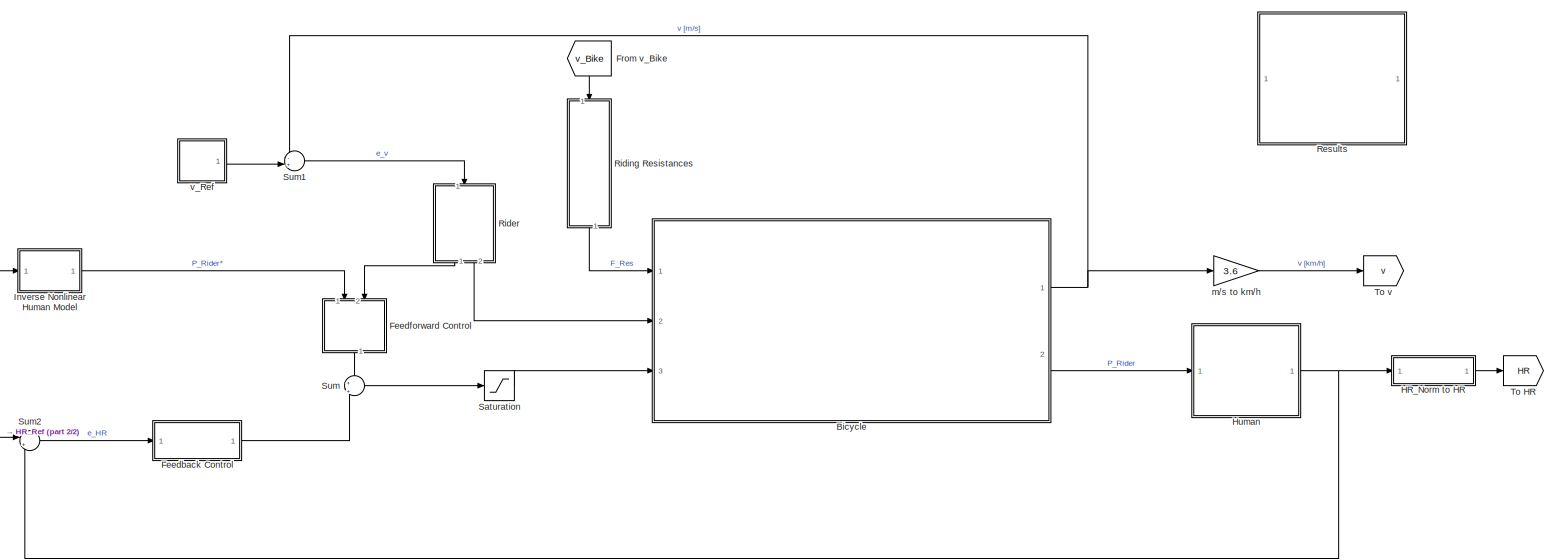
[diagram: root canvas - part 1/2, most of the canvas]
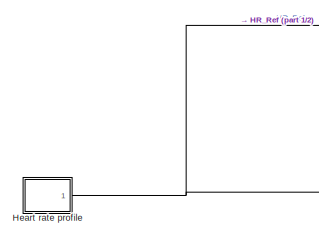
[diagram: root canvas - part 2/2, middle left region]
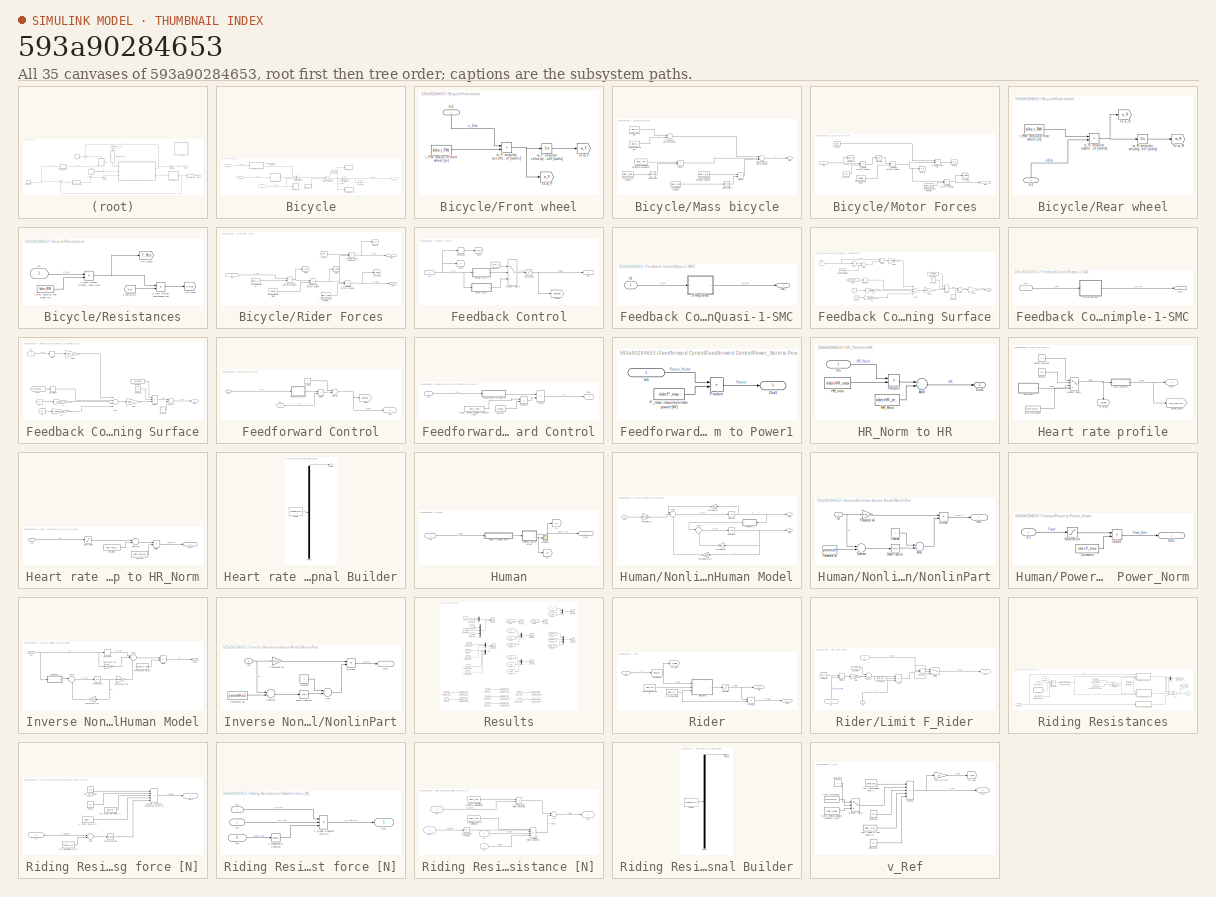
[diagram: thumbnail index - all 35 canvases of the model, root first then tree order]
MODEL slx_593a90284653
KIND model
BLOCK [SubSystem] Bicycle
  Ports = [3, 2]
  RequestExecContextInheritance = off
BLOCK [SubSystem] Bicycle/Front wheel
  Ports = [1]
  RequestExecContextInheritance = off
BLOCK [Inport] Bicycle/Front wheel/In1
  IconDisplay = Signal name
BLOCK [Goto] Bicycle/Front wheel/To a_F
  GotoTag = a_F
  TagVisibility = global
BLOCK [Goto] Bicycle/Front wheel/To w_F
  GotoTag = w_F
  TagVisibility = global
BLOCK [Product] Bicycle/Front wheel/a_F: angular acceleration of front wheel [rad//s²] 
  InputSameDT = off
  Inputs = */
  OutDataTypeStr = Inherit: Inherit via internal rule
  Ports = [2, 1]
  RndMeth = Floor
  SaturateOnIntegerOverflow = off
BLOCK [Constant] Bicycle/Front wheel/r_FW: radius of front wheel [m]
  Value = bike.r_FW
BLOCK [Integrator] Bicycle/Front wheel/w_F: angular velocity of front wheel [rad//s]
  Ports = [1, 1]
BLOCK [Inport] Bicycle/In1
  IconDisplay = Signal name
  Port = 2
BLOCK [Inport] Bicycle/In2
  IconDisplay = Signal name
  Port = 3
BLOCK [Inport] Bicycle/In3
  IconDisplay = Signal name
BLOCK [SubSystem] Bicycle/Mass bicycle
  Ports = [0, 1]
  RequestExecContextInheritance = off
BLOCK [Product] Bicycle/Mass bicycle/Divide1
  InputSameDT = off
  Inputs = */
  OutDataTypeStr = Inherit: Inherit via internal rule
  Ports = [2, 1]
  RndMeth = Floor
  SaturateOnIntegerOverflow = off
BLOCK [Product] Bicycle/Mass bicycle/Divide2
  InputSameDT = off
  Inputs = */
  OutDataTypeStr = Inherit: Inherit via internal rule
  Ports = [2, 1]
  RndMeth = Floor
  SaturateOnIntegerOverflow = off
BLOCK [Constant] Bicycle/Mass bicycle/I_F: Mass moment of inertia of front wheel [kgm²]
  Value = bike.I_FW
BLOCK [Constant] Bicycle/Mass bicycle/I_RW: Mass moment of inertia of rear wheel [kgm²]
  Value = bike.I_RW
BLOCK [Sum] Bicycle/Mass bicycle/M: Mass of bicycle rider system [kg]
  InputSameDT = off
  Inputs = +++
  OutDataTypeStr = Inherit: Inherit via internal rule
  Ports = [3, 1]
  SaturateOnIntegerOverflow = off
BLOCK [Math] Bicycle/Mass bicycle/Math Function
  Operator = square
  Ports = [1, 1]
BLOCK [Math] Bicycle/Mass bicycle/Math Function1
  Operator = square
  Ports = [1, 1]
BLOCK [Outport] Bicycle/Mass bicycle/Out1
  IconDisplay = Signal name
BLOCK [Constant] Bicycle/Mass bicycle/m_B: mass of bicycle [kg]
  Value = bike.m
BLOCK [Constant] Bicycle/Mass bicycle/m_R: mass of rider [kg]
  Value = rider.m
BLOCK [Sum] Bicycle/Mass bicycle/m_T: Mass of bicycle + rider [kg]
  InputSameDT = off
  OutDataTypeStr = Inherit: Inherit via internal rule
  Ports = [2, 1]
  SaturateOnIntegerOverflow = off
BLOCK [Constant] Bicycle/Mass bicycle/r_F: front wheel radius [m]
  Value = bike.r_FW
BLOCK [Constant] Bicycle/Mass bicycle/r_RW: rear wheel radius [m]
  Value = bike.r_RW
BLOCK [SubSystem] Bicycle/Motor Forces
  Ports = [1, 1]
  RequestExecContextInheritance = off
BLOCK [Product] Bicycle/Motor Forces/F_MRW: Motor Force at rear wheel [N]
  InputSameDT = off
  Inputs = */
  OutDataTypeStr = Inherit: Inherit via internal rule
  Ports = [2, 1]
  RndMeth = Floor
  SaturateOnIntegerOverflow = off
BLOCK [From] Bicycle/Motor Forces/From T_RC
  GotoTag = T_RC
  TagVisibility = global
BLOCK [From] Bicycle/Motor Forces/From w_F
  GotoTag = w_R
  TagVisibility = global
BLOCK [Inport] Bicycle/Motor Forces/In2
  IconDisplay = Signal name
BLOCK [Outport] Bicycle/Motor Forces/Out1
  IconDisplay = Signal name
BLOCK [Product] Bicycle/Motor Forces/P_M: Motor Power [W]
  InputSameDT = off
  Inputs = **
  OutDataTypeStr = Inherit: Inherit via internal rule
  Ports = [2, 1]
  RndMeth = Floor
  SaturateOnIntegerOverflow = off
BLOCK [Saturate] Bicycle/Motor Forces/Saturation
  InputPortMap = u0
  LowerLimit = bike.motor.T_min
  Ports = [1, 1]
  UpperLimit = bike.motor.T_max
  ZeroCross = off
BLOCK [Product] Bicycle/Motor Forces/T_MP: Motor Torque at pedals [Nm]
  InputSameDT = off
  Inputs = **
  OutDataTypeStr = Inherit: Inherit via internal rule
  Ports = [2, 1]
  RndMeth = Floor
  SaturateOnIntegerOverflow = off
BLOCK [Product] Bicycle/Motor Forces/T_MRW: Motor torque at rear wheel [Nm]
  InputSameDT = off
  Inputs = */
  OutDataTypeStr = Inherit: Inherit via internal rule
  Ports = [2, 1]
  RndMeth = Floor
  SaturateOnIntegerOverflow = off
BLOCK [Goto] Bicycle/Motor Forces/To F_MRW
  GotoTag = F_MRW
  TagVisibility = global
BLOCK [Goto] Bicycle/Motor Forces/To P_M
  GotoTag = P_M
  TagVisibility = global
BLOCK [Goto] Bicycle/Motor Forces/To T_M
  GotoTag = T_M
  TagVisibility = global
BLOCK [Goto] Bicycle/Motor Forces/To beta_ref
  GotoTag = beta_ref
  TagVisibility = global
BLOCK [Constant] Bicycle/Motor Forces/r_RW: radius of rear wheel [m]
  Value = bike.r_RW
BLOCK [Constant] Bicycle/Motor Forces/tau: transmission ratio [-]
  Value = bike.tau
BLOCK [Outport] Bicycle/Out1
  IconDisplay = Signal name
BLOCK [Outport] Bicycle/Out2
  IconDisplay = Signal name
  Port = 2
BLOCK [SubSystem] Bicycle/Rear wheel
  Ports = [1]
  RequestExecContextInheritance = off
BLOCK [Inport] Bicycle/Rear wheel/In1
  IconDisplay = Signal name
BLOCK [Goto] Bicycle/Rear wheel/To a_R
  GotoTag = a_R
  TagVisibility = global
BLOCK [Goto] Bicycle/Rear wheel/To w_R
  GotoTag = w_R
  TagVisibility = global
BLOCK [Product] Bicycle/Rear wheel/a_R: angular acceleration of rear wheel [rad//s²] 
  InputSameDT = off
  Inputs = /*
  OutDataTypeStr = Inherit: Inherit via internal rule
  Ports = [2, 1]
  RndMeth = Floor
  SaturateOnIntegerOverflow = off
BLOCK [Constant] Bicycle/Rear wheel/r_RW: radius of rear wheel [m]
  Value = bike.r_RW
BLOCK [Integrator] Bicycle/Rear wheel/w_R: angular velocity of rear wheel [rad//s]
  Ports = [1, 1]
BLOCK [SubSystem] Bicycle/Resistances
  Ports = [1]
  RequestExecContextInheritance = off
BLOCK [From] Bicycle/Resistances/From w_R2
  GotoTag = w_R
  TagVisibility = global
BLOCK [Inport] Bicycle/Resistances/In1
  IconDisplay = Signal name
BLOCK [Product] Bicycle/Resistances/P_Res: Riding resistances [W]
  InputSameDT = off
  OutDataTypeStr = Inherit: Inherit via internal rule
  Ports = [2, 1]
  RndMeth = Floor
  SaturateOnIntegerOverflow = off
BLOCK [Product] Bicycle/Resistances/T_Res: Torque Riding resistances [Nm]
  InputSameDT = off
  OutDataTypeStr = Inherit: Inherit via internal rule
  Ports = [2, 1]
  RndMeth = Floor
  SaturateOnIntegerOverflow = off
BLOCK [Goto] Bicycle/Resistances/To P_Res
  GotoTag = P_Res
  TagVisibility = global
BLOCK [Goto] Bicycle/Resistances/To T_Res1
  GotoTag = T_Res
  TagVisibility = global
BLOCK [Constant] Bicycle/Resistances/r_RW: radius of rear wheel [m]
  Value = bike.r_RW
BLOCK [SubSystem] Bicycle/Rider Forces
  Ports = [1, 2]
  RequestExecContextInheritance = off
BLOCK [Product] Bicycle/Rider Forces/F_RRW: Rider Force at rear wheel [N]
  InputSameDT = off
  Inputs = */
  OutDataTypeStr = Inherit: Inherit via internal rule
  Ports = [2, 1]
  RndMeth = Floor
  SaturateOnIntegerOverflow = off
BLOCK [From] Bicycle/Rider Forces/From w_R
  GotoTag = w_R
  TagVisibility = global
BLOCK [Goto] Bicycle/Rider Forces/Goto1
  GotoTag = T_RRW
  TagVisibility = global
BLOCK [Goto] Bicycle/Rider Forces/Goto2
  GotoTag = T_RC
  TagVisibility = global
BLOCK [Inport] Bicycle/Rider Forces/In1
  IconDisplay = Signal name
BLOCK [Outport] Bicycle/Rider Forces/Out1
  IconDisplay = Signal name
  Port = 2
BLOCK [Outport] Bicycle/Rider Forces/Out2
  IconDisplay = Signal name
BLOCK [Product] Bicycle/Rider Forces/P_R: Power output of rider [W]
  InputSameDT = off
  OutDataTypeStr = Inherit: Inherit via internal rule
  Ports = [2, 1]
  RndMeth = Floor
  SaturateOnIntegerOverflow = off
BLOCK [Product] Bicycle/Rider Forces/T_RC: Torque Rider at cranks[Nm]
  InputSameDT = off
  OutDataTypeStr = Inherit: Inherit via internal rule
  Ports = [2, 1]
  RndMeth = Floor
  SaturateOnIntegerOverflow = off
BLOCK [Product] Bicycle/Rider Forces/T_RRW: Torque rider at rear wheel [Nm]
  InputSameDT = off
  Inputs = */
  OutDataTypeStr = Inherit: Inherit via internal rule
  Ports = [2, 1]
  RndMeth = Floor
  SaturateOnIntegerOverflow = off
BLOCK [Goto] Bicycle/Rider Forces/To F_RRW
  GotoTag = F_RRW
  TagVisibility = global
BLOCK [Goto] Bicycle/Rider Forces/To P_R
  GotoTag = P_R
  TagVisibility = global
BLOCK [Constant] Bicycle/Rider Forces/r_C: Crank length [m]
  Value = bike.r_C
BLOCK [Constant] Bicycle/Rider Forces/r_RW: radius of rear wheel [m]
  Value = bike.r_RW
BLOCK [Constant] Bicycle/Rider Forces/tau: transmission ratio [-]
  Value = bike.tau
BLOCK [Goto] Bicycle/To a_Bike
  GotoTag = a_Bike
  TagVisibility = global
BLOCK [Goto] Bicycle/To v_Bike
  GotoTag = v_Bike
  TagVisibility = global
BLOCK [Sum] Bicycle/Total Forces on bicycle [N]
  InputSameDT = off
  Inputs = ++-
  OutDataTypeStr = Inherit: Inherit via internal rule
  Ports = [3, 1]
  SaturateOnIntegerOverflow = off
BLOCK [Product] Bicycle/a_Bike: acceleration of bicycle [m//s²]
  InputSameDT = off
  Inputs = */
  OutDataTypeStr = Inherit: Inherit via internal rule
  Ports = [2, 1]
  RndMeth = Floor
  SaturateOnIntegerOverflow = off
BLOCK [Integrator] Bicycle/v_Bike: Velocity of bicycle [m//s]
  Ports = [1, 1]
BLOCK [SubSystem] Feedback Control
  Ports = [1, 1]
  RequestExecContextInheritance = off
BLOCK [Constant] Feedback Control/Constant
  Value = cont.c
BLOCK [Derivative] Feedback Control/Derivative
BLOCK [Goto] Feedback Control/Goto
  GotoTag = e_dot
  TagVisibility = global
BLOCK [Goto] Feedback Control/Goto1
  GotoTag = e
  TagVisibility = global
BLOCK [Goto] Feedback Control/Goto3
  GotoTag = betaFB
  TagVisibility = global
BLOCK [Inport] Feedback Control/In1
  IconDisplay = Signal name
BLOCK [MultiPortSwitch] Feedback Control/Multiport Switch
  InputSameDT = off
  Inputs = 2
  Ports = [3, 1]
  SaturateOnIntegerOverflow = off
BLOCK [Outport] Feedback Control/Out1
  IconDisplay = Signal name
BLOCK [SubSystem] Feedback Control/Quasi-1-SMC
  Ports = [1, 1]
  RequestExecContextInheritance = off
BLOCK [Inport] Feedback Control/Quasi-1-SMC/In1
  IconDisplay = Signal name
BLOCK [Outport] Feedback Control/Quasi-1-SMC/Out1
  IconDisplay = Signal name
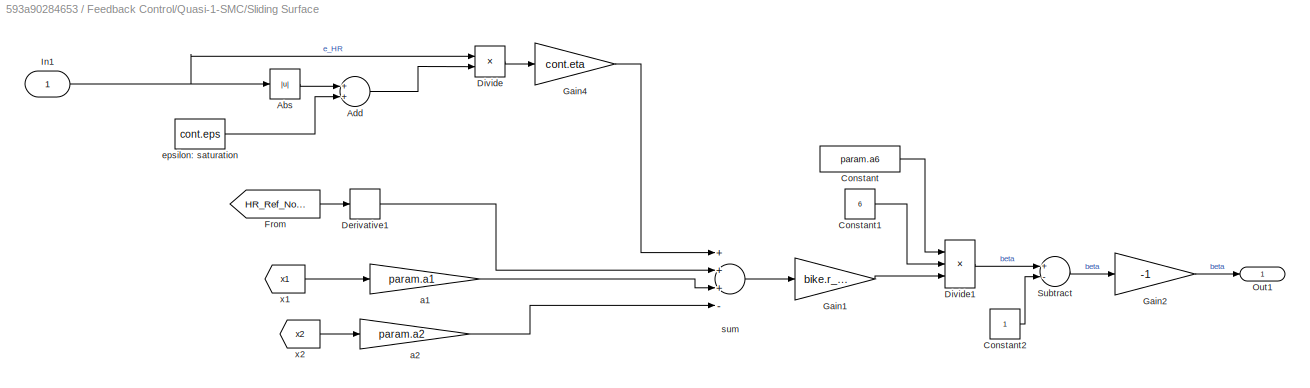
BLOCK [SubSystem] Feedback Control/Quasi-1-SMC/Sliding Surface
  Ports = [1, 1]
  RequestExecContextInheritance = off
BLOCK [Abs] Feedback Control/Quasi-1-SMC/Sliding Surface/Abs
  SaturateOnIntegerOverflow = off
  ZeroCross = off
BLOCK [Sum] Feedback Control/Quasi-1-SMC/Sliding Surface/Add
  InputSameDT = off
  OutDataTypeStr = Inherit: Inherit via internal rule
  Ports = [2, 1]
  SaturateOnIntegerOverflow = off
BLOCK [Constant] Feedback Control/Quasi-1-SMC/Sliding Surface/Constant
  Value = param.a6
BLOCK [Constant] Feedback Control/Quasi-1-SMC/Sliding Surface/Constant1
  Value = 6
BLOCK [Constant] Feedback Control/Quasi-1-SMC/Sliding Surface/Constant2
BLOCK [Derivative] Feedback Control/Quasi-1-SMC/Sliding Surface/Derivative1
BLOCK [Product] Feedback Control/Quasi-1-SMC/Sliding Surface/Divide
  InputSameDT = off
  Inputs = */
  OutDataTypeStr = Inherit: Inherit via internal rule
  Ports = [2, 1]
  RndMeth = Floor
  SaturateOnIntegerOverflow = off
BLOCK [Product] Feedback Control/Quasi-1-SMC/Sliding Surface/Divide1
  InputSameDT = off
  Inputs = **/
  OutDataTypeStr = Inherit: Inherit via internal rule
  Ports = [3, 1]
  RndMeth = Floor
  SaturateOnIntegerOverflow = off
BLOCK [From] Feedback Control/Quasi-1-SMC/Sliding Surface/From
  GotoTag = HR_Ref_Norm
  TagVisibility = global
BLOCK [Gain] Feedback Control/Quasi-1-SMC/Sliding Surface/Gain1
  Gain = bike.r_RW*rider.P_max/10
  OutDataTypeStr = Inherit: Inherit via internal rule
  ParamDataTypeStr = Inherit: Inherit via internal rule
  SaturateOnIntegerOverflow = off
BLOCK [Gain] Feedback Control/Quasi-1-SMC/Sliding Surface/Gain2
  Gain = -1
  OutDataTypeStr = Inherit: Inherit via internal rule
  ParamDataTypeStr = Inherit: Inherit via internal rule
  SaturateOnIntegerOverflow = off
BLOCK [Gain] Feedback Control/Quasi-1-SMC/Sliding Surface/Gain4
  Gain = cont.eta
  OutDataTypeStr = Inherit: Inherit via internal rule
  ParamDataTypeStr = Inherit: Inherit via internal rule
  SaturateOnIntegerOverflow = off
BLOCK [Inport] Feedback Control/Quasi-1-SMC/Sliding Surface/In1
  IconDisplay = Signal name
BLOCK [Outport] Feedback Control/Quasi-1-SMC/Sliding Surface/Out1
  IconDisplay = Signal name
BLOCK [Sum] Feedback Control/Quasi-1-SMC/Sliding Surface/Subtract
  InputSameDT = off
  Inputs = +-
  OutDataTypeStr = Inherit: Inherit via internal rule
  Ports = [2, 1]
  SaturateOnIntegerOverflow = off
BLOCK [Gain] Feedback Control/Quasi-1-SMC/Sliding Surface/a1
  Gain = param.a1
  OutDataTypeStr = Inherit: Inherit via internal rule
  ParamDataTypeStr = Inherit: Inherit via internal rule
  SaturateOnIntegerOverflow = off
BLOCK [Gain] Feedback Control/Quasi-1-SMC/Sliding Surface/a2
  Gain = param.a2
  OutDataTypeStr = Inherit: Inherit via internal rule
  ParamDataTypeStr = Inherit: Inherit via internal rule
  SaturateOnIntegerOverflow = off
BLOCK [Constant] Feedback Control/Quasi-1-SMC/Sliding Surface/epsilon: saturation
  Value = cont.eps
  VectorParams1D = off
BLOCK [Sum] Feedback Control/Quasi-1-SMC/Sliding Surface/sum
  InputSameDT = off
  Inputs = +++-
  OutDataTypeStr = Inherit: Inherit via internal rule
  Ports = [4, 1]
  SaturateOnIntegerOverflow = off
BLOCK [From] Feedback Control/Quasi-1-SMC/Sliding Surface/x1
  GotoTag = x1
  TagVisibility = global
BLOCK [From] Feedback Control/Quasi-1-SMC/Sliding Surface/x2
  GotoTag = x2
  TagVisibility = global
BLOCK [Saturate] Feedback Control/Saturation
  InputPortMap = u0
  LowerLimit = cont.lowLim
  Ports = [1, 1]
  UpperLimit = cont.upLim
BLOCK [SubSystem] Feedback Control/Simple-1-SMC
  Ports = [1, 1]
  RequestExecContextInheritance = off
BLOCK [Inport] Feedback Control/Simple-1-SMC/In1
  IconDisplay = Signal name
BLOCK [Outport] Feedback Control/Simple-1-SMC/Out1
  IconDisplay = Signal name
BLOCK [SubSystem] Feedback Control/Simple-1-SMC/Sliding Surface
  Ports = [1, 1]
  RequestExecContextInheritance = off
BLOCK [Constant] Feedback Control/Simple-1-SMC/Sliding Surface/Constant
  Value = param.a6
BLOCK [Constant] Feedback Control/Simple-1-SMC/Sliding Surface/Constant1
  Value = 6
BLOCK [Constant] Feedback Control/Simple-1-SMC/Sliding Surface/Constant2
BLOCK [Derivative] Feedback Control/Simple-1-SMC/Sliding Surface/Derivative1
BLOCK [Product] Feedback Control/Simple-1-SMC/Sliding Surface/Divide1
  InputSameDT = off
  Inputs = **/
  OutDataTypeStr = Inherit: Inherit via internal rule
  Ports = [3, 1]
  RndMeth = Floor
  SaturateOnIntegerOverflow = off
BLOCK [From] Feedback Control/Simple-1-SMC/Sliding Surface/From
  GotoTag = HR_Ref_Norm
  TagVisibility = global
BLOCK [Gain] Feedback Control/Simple-1-SMC/Sliding Surface/Gain1
  Gain = bike.r_RW*rider.P_max
  OutDataTypeStr = Inherit: Inherit via internal rule
  ParamDataTypeStr = Inherit: Inherit via internal rule
  SaturateOnIntegerOverflow = off
BLOCK [Gain] Feedback Control/Simple-1-SMC/Sliding Surface/Gain4
  Gain = cont.eta
  OutDataTypeStr = Inherit: Inherit via internal rule
  ParamDataTypeStr = Inherit: Inherit via internal rule
  SaturateOnIntegerOverflow = off
BLOCK [Inport] Feedback Control/Simple-1-SMC/Sliding Surface/In1
  IconDisplay = Signal name
BLOCK [Outport] Feedback Control/Simple-1-SMC/Sliding Surface/Out1
  IconDisplay = Signal name
BLOCK [Signum] Feedback Control/Simple-1-SMC/Sliding Surface/Sign
  ZeroCross = off
BLOCK [Sum] Feedback Control/Simple-1-SMC/Sliding Surface/Subtract
  InputSameDT = off
  Inputs = +-
  OutDataTypeStr = Inherit: Inherit via internal rule
  Ports = [2, 1]
  SaturateOnIntegerOverflow = off
BLOCK [Gain] Feedback Control/Simple-1-SMC/Sliding Surface/a1
  Gain = param.a1
  OutDataTypeStr = Inherit: Inherit via internal rule
  ParamDataTypeStr = Inherit: Inherit via internal rule
  SaturateOnIntegerOverflow = off
BLOCK [Gain] Feedback Control/Simple-1-SMC/Sliding Surface/a2
  Gain = param.a2
  OutDataTypeStr = Inherit: Inherit via internal rule
  ParamDataTypeStr = Inherit: Inherit via internal rule
  SaturateOnIntegerOverflow = off
BLOCK [Sum] Feedback Control/Simple-1-SMC/Sliding Surface/sum
  InputSameDT = off
  Inputs = +++-
  OutDataTypeStr = Inherit: Inherit via internal rule
  Ports = [4, 1]
  SaturateOnIntegerOverflow = off
BLOCK [From] Feedback Control/Simple-1-SMC/Sliding Surface/x1
  GotoTag = x1
  TagVisibility = global
BLOCK [From] Feedback Control/Simple-1-SMC/Sliding Surface/x2
  GotoTag = x2
  TagVisibility = global
BLOCK [SubSystem] Feedforward Control
  Ports = [2, 1]
  RequestExecContextInheritance = off
BLOCK [Constant] Feedforward Control/Constant
BLOCK [Product] Feedforward Control/Divide
  InputSameDT = off
  Inputs = */
  OutDataTypeStr = Inherit: Inherit via internal rule
  Ports = [2, 1]
  RndMeth = Floor
  SaturateOnIntegerOverflow = off
BLOCK [SubSystem] Feedforward Control/Feedforward Control
  Ports = [1, 1]
  RequestExecContextInheritance = off
BLOCK [Constant] Feedforward Control/Feedforward Control/Constant
  Value = 2*pi/60
BLOCK [Inport] Feedforward Control/Feedforward Control/In1
  IconDisplay = Signal name
BLOCK [Outport] Feedforward Control/Feedforward Control/Out1
  IconDisplay = Signal name
BLOCK [SubSystem] Feedforward Control/Feedforward Control/Power_Norm to Power1
  Ports = [1, 1]
  RequestExecContextInheritance = off
BLOCK [Inport] Feedforward Control/Feedforward Control/Power_Norm to Power1/In1
  IconDisplay = Signal name
BLOCK [Outport] Feedforward Control/Feedforward Control/Power_Norm to Power1/Out1
  IconDisplay = Signal name
BLOCK [Constant] Feedforward Control/Feedforward Control/Power_Norm to Power1/P_max: maximum rider power [W]
  Value = rider.P_max
BLOCK [Product] Feedforward Control/Feedforward Control/Power_Norm to Power1/Product
  InputSameDT = off
  OutDataTypeStr = Inherit: Inherit via internal rule
  Ports = [2, 1]
  RndMeth = Floor
  SaturateOnIntegerOverflow = off
BLOCK [Product] Feedforward Control/Feedforward Control/Product
  InputSameDT = off
  Inputs = */
  OutDataTypeStr = Inherit: Inherit via internal rule
  Ports = [2, 1]
  RndMeth = Floor
  SaturateOnIntegerOverflow = off
BLOCK [Product] Feedforward Control/Feedforward Control/Product2
  InputSameDT = off
  OutDataTypeStr = Inherit: Inherit via internal rule
  Ports = [2, 1]
  RndMeth = Floor
  SaturateOnIntegerOverflow = off
BLOCK [Constant] Feedforward Control/Feedforward Control/n_des: desired pedaling frequency [rpm]
  Value = rider.n_des
BLOCK [Goto] Feedforward Control/Goto2
  GotoTag = betaFF
  TagVisibility = global
BLOCK [Inport] Feedforward Control/In1
  IconDisplay = Signal name
  Port = 2
BLOCK [Inport] Feedforward Control/In2
  IconDisplay = Signal name
BLOCK [Outport] Feedforward Control/Out1
  IconDisplay = Signal name
BLOCK [Sum] Feedforward Control/Subtract
  InputSameDT = off
  Inputs = +-
  OutDataTypeStr = Inherit: Inherit via internal rule
  Ports = [2, 1]
  SaturateOnIntegerOverflow = off
BLOCK [From] From v_Bike
  GotoTag = v_Bike
  TagVisibility = global
BLOCK [SubSystem] HR_Norm to HR
  Ports = [1, 1]
  RequestExecContextInheritance = off
BLOCK [Sum] HR_Norm to HR/Add
  InputSameDT = off
  OutDataTypeStr = Inherit: Inherit via internal rule
  Ports = [2, 1]
  SaturateOnIntegerOverflow = off
BLOCK [Constant] HR_Norm to HR/HR_Rest
  Value = rider.HR_rest
BLOCK [Constant] HR_Norm to HR/HR_max
  Value = rider.HR_max
BLOCK [Inport] HR_Norm to HR/In1
  IconDisplay = Signal name
BLOCK [Outport] HR_Norm to HR/Out1
  IconDisplay = Signal name
BLOCK [Product] HR_Norm to HR/Product
  InputSameDT = off
  OutDataTypeStr = Inherit: Inherit via internal rule
  Ports = [2, 1]
  RndMeth = Floor
  SaturateOnIntegerOverflow = off
BLOCK [SubSystem] Heart rate profile
  Ports = [0, 1]
  RequestExecContextInheritance = off
BLOCK [Constant] Heart rate profile/Choose HR_Profile
  Value = 3
BLOCK [Constant] Heart rate profile/Constant
  Value = 140
BLOCK [FromWorkspace] Heart rate profile/From Workspace
  SampleTime = 0
  VariableName = HRPROFILE
  ZeroCross = on
BLOCK [SubSystem] Heart rate profile/HR to HR_Norm
  Ports = [1, 1]
  RequestExecContextInheritance = off
BLOCK [Product] Heart rate profile/HR to HR_Norm/Divide
  InputSameDT = off
  Inputs = */
  OutDataTypeStr = Inherit: Inherit via internal rule
  Ports = [2, 1]
  RndMeth = Floor
  SaturateOnIntegerOverflow = off
BLOCK [Constant] Heart rate profile/HR to HR_Norm/HR_Rest
  Value = rider.HR_rest
BLOCK [Constant] Heart rate profile/HR to HR_Norm/HR_max
  Value = rider.HR_max
BLOCK [Inport] Heart rate profile/HR to HR_Norm/In1
  IconDisplay = Signal name
BLOCK [Outport] Heart rate profile/HR to HR_Norm/Out1
  IconDisplay = Signal name
BLOCK [Saturate] Heart rate profile/HR to HR_Norm/Saturation
  InputPortMap = u0
  LowerLimit = rider.HR_rest
  Ports = [1, 1]
  UpperLimit = rider.HR_max
BLOCK [Sum] Heart rate profile/HR to HR_Norm/Subtract
  InputSameDT = off
  Inputs = +-
  OutDataTypeStr = Inherit: Inherit via internal rule
  Ports = [2, 1]
  SaturateOnIntegerOverflow = off
BLOCK [Goto] Heart rate profile/HR_Ref_Norm
  GotoTag = HR_Ref_Norm
  TagVisibility = global
BLOCK [MultiPortSwitch] Heart rate profile/Multiport Switch
  InputSameDT = off
  Ports = [4, 1]
  SaturateOnIntegerOverflow = off
BLOCK [Outport] Heart rate profile/Out1
  IconDisplay = Signal name
BLOCK [SubSystem] Heart rate profile/Signal Builder
  ClipboardFcn = sigbuilder_block('clipboard');
  CloseFcn = sigbuilder_block('close');
  ContinueFcn = sigbuilder_block('continue');
  CopyFcn = sigbuilder_block('copy');
  DeleteFcn = sigbuilder_block('delete');
  LoadFcn = sigbuilder_block('load');
  MaskHideContents = on
  ModelCloseFcn = sigbuilder_block('modelClose');
  NameChangeFcn = sigbuilder_block('namechange');
  OpenFcn = sigbuilder_block('open',[216 88.5 550.5 394.5 ]);
  PauseFcn = sigbuilder_block('pause');
  Ports = [0, 1]
  PreSaveFcn = sigbuilder_block('preSave');
  RequestExecContextInheritance = off
  StartFcn = sigbuilder_block('start');
  StopFcn = sigbuilder_block('stop');
  Tag = STV Subsys
BLOCK [Demux] Heart rate profile/Signal Builder/Demux
  Outputs = 1
  Ports = [1, 1]
  Tag = STV Demux
BLOCK [FromWorkspace] Heart rate profile/Signal Builder/FromWs
  SampleTime = 0
  Tag = STV FromWs
  VariableName = tuvar
  ZeroCross = on
BLOCK [Outport] Heart rate profile/Signal Builder/Signal 1
  IconDisplay = Port number
  Tag = STV Outport
BLOCK [Goto] Heart rate profile/To HR_Ref
  GotoTag = HR_Ref
  IconDisplay = Signal name
  TagVisibility = global
BLOCK [SubSystem] Human
  Ports = [1, 1]
  RequestExecContextInheritance = off
BLOCK [Inport] Human/In1
  IconDisplay = Signal name
BLOCK [SubSystem] Human/Nonlinear Human Model
  Ports = [1, 2]
  RequestExecContextInheritance = off
BLOCK [Inport] Human/Nonlinear Human Model/In1
  IconDisplay = Signal name
BLOCK [Integrator] Human/Nonlinear Human Model/Integrator
  Ports = [1, 1]
BLOCK [Integrator] Human/Nonlinear Human Model/Integrator1
  Ports = [1, 1]
BLOCK [SubSystem] Human/Nonlinear Human Model/NonlinPart
  Ports = [1, 1]
  RequestExecContextInheritance = off
BLOCK [Sum] Human/Nonlinear Human Model/NonlinPart/Add
  InputSameDT = off
  OutDataTypeStr = Inherit: Inherit via internal rule
  Ports = [2, 1]
  SaturateOnIntegerOverflow = off
BLOCK [Constant] Human/Nonlinear Human Model/NonlinPart/Constant
BLOCK [Product] Human/Nonlinear Human Model/NonlinPart/Divide1
  InputSameDT = off
  Inputs = */
  OutDataTypeStr = Inherit: Inherit via internal rule
  Ports = [2, 1]
  RndMeth = Floor
  SaturateOnIntegerOverflow = off
BLOCK [Inport] Human/Nonlinear Human Model/NonlinPart/In2
  IconDisplay = Signal name
BLOCK [Math] Human/Nonlinear Human Model/NonlinPart/Math Function
  Ports = [1, 1]
BLOCK [Outport] Human/Nonlinear Human Model/NonlinPart/Out1
  IconDisplay = Signal name
BLOCK [Gain] Human/Nonlinear Human Model/NonlinPart/Parameter a4
  Gain = param.a4
  OutDataTypeStr = Inherit: Inherit via internal rule
  ParamDataTypeStr = Inherit: Inherit via internal rule
  SaturateOnIntegerOverflow = off
BLOCK [Constant] Human/Nonlinear Human Model/NonlinPart/Parameter a5
  Value = param.a5
BLOCK [Sum] Human/Nonlinear Human Model/NonlinPart/Subtract
  InputSameDT = off
  Inputs = -+
  OutDataTypeStr = Inherit: Inherit via internal rule
  Ports = [2, 1]
  SaturateOnIntegerOverflow = off
BLOCK [Outport] Human/Nonlinear Human Model/Out1
  IconDisplay = Signal name
BLOCK [Outport] Human/Nonlinear Human Model/Out2
  IconDisplay = Signal name
  Port = 2
BLOCK [Gain] Human/Nonlinear Human Model/Parameter a1
  Gain = -param.a1
  OutDataTypeStr = Inherit: Inherit via internal rule
  ParamDataTypeStr = Inherit: Inherit via internal rule
  SaturateOnIntegerOverflow = off
BLOCK [Gain] Human/Nonlinear Human Model/Parameter a2
  Gain = param.a2
  OutDataTypeStr = Inherit: Inherit via internal rule
  ParamDataTypeStr = Inherit: Inherit via internal rule
  SaturateOnIntegerOverflow = off
BLOCK [Gain] Human/Nonlinear Human Model/Parameter a3
  Gain = -param.a3
  OutDataTypeStr = Inherit: Inherit via internal rule
  ParamDataTypeStr = Inherit: Inherit via internal rule
  SaturateOnIntegerOverflow = off
BLOCK [Gain] Human/Nonlinear Human Model/Parameter a6=a2
  Gain = param.a2
  OutDataTypeStr = Inherit: Inherit via internal rule
  ParamDataTypeStr = Inherit: Inherit via internal rule
  SaturateOnIntegerOverflow = off
BLOCK [Sum] Human/Nonlinear Human Model/Sum1
  IconShape = round
  InputSameDT = off
  Inputs = |+++
  OutDataTypeStr = Inherit: Inherit via internal rule
  Ports = [3, 1]
  SaturateOnIntegerOverflow = off
BLOCK [Sum] Human/Nonlinear Human Model/Sum2
  IconShape = round
  InputSameDT = off
  Inputs = |++
  OutDataTypeStr = Inherit: Inherit via internal rule
  Ports = [2, 1]
  SaturateOnIntegerOverflow = off
BLOCK [Outport] Human/Out1
  IconDisplay = Signal name
BLOCK [SubSystem] Human/Power to Power_Norm
  Ports = [1, 1]
  RequestExecContextInheritance = off
BLOCK [Constant] Human/Power to Power_Norm/Constant
  Value = rider.P_max
BLOCK [Product] Human/Power to Power_Norm/Divide
  InputSameDT = off
  Inputs = */
  OutDataTypeStr = Inherit: Inherit via internal rule
  Ports = [2, 1]
  RndMeth = Floor
  SaturateOnIntegerOverflow = off
BLOCK [Inport] Human/Power to Power_Norm/In1
  IconDisplay = Signal name
BLOCK [Outport] Human/Power to Power_Norm/Out1
  IconDisplay = Signal name
BLOCK [Saturate] Human/Power to Power_Norm/Saturation
  InputPortMap = u0
  LowerLimit = 0
  Ports = [1, 1]
  UpperLimit = rider.P_max
  ZeroCross = off
BLOCK [Scope] Human/Scopex2
  Floating = off
  NumInputPorts = 1
  Ports = [1]
  SaveName = ScopeData2
  ShowLegends = off
BLOCK [Goto] Human/x1
  GotoTag = x1
  TagVisibility = global
BLOCK [Goto] Human/x2
  GotoTag = x2
  TagVisibility = global
BLOCK [SubSystem] Inverse Nonlinear Human Model
  Ports = [1, 1]
  RequestExecContextInheritance = off
BLOCK [Derivative] Inverse Nonlinear Human Model/Derivative
BLOCK [Product] Inverse Nonlinear Human Model/Divide
  InputSameDT = off
  Inputs = */
  OutDataTypeStr = Inherit: Inherit via internal rule
  Ports = [2, 1]
  RndMeth = Floor
  SaturateOnIntegerOverflow = off
BLOCK [Inport] Inverse Nonlinear Human Model/In1
  IconDisplay = Signal name
BLOCK [Integrator] Inverse Nonlinear Human Model/Integrator1
  Ports = [1, 1]
BLOCK [SubSystem] Inverse Nonlinear Human Model/NonlinPart
  Ports = [1, 1]
  RequestExecContextInheritance = off
BLOCK [Sum] Inverse Nonlinear Human Model/NonlinPart/Add
  InputSameDT = off
  OutDataTypeStr = Inherit: Inherit via internal rule
  Ports = [2, 1]
  SaturateOnIntegerOverflow = off
BLOCK [Constant] Inverse Nonlinear Human Model/NonlinPart/Constant
BLOCK [Product] Inverse Nonlinear Human Model/NonlinPart/Divide1
  InputSameDT = off
  Inputs = */
  OutDataTypeStr = Inherit: Inherit via internal rule
  Ports = [2, 1]
  RndMeth = Floor
  SaturateOnIntegerOverflow = off
BLOCK [Inport] Inverse Nonlinear Human Model/NonlinPart/In2
  IconDisplay = Signal name
BLOCK [Math] Inverse Nonlinear Human Model/NonlinPart/Math Function
  Ports = [1, 1]
BLOCK [Outport] Inverse Nonlinear Human Model/NonlinPart/Out1
  IconDisplay = Signal name
BLOCK [Gain] Inverse Nonlinear Human Model/NonlinPart/Parameter a4
  Gain = paramIH.a4
  OutDataTypeStr = Inherit: Inherit via internal rule
  ParamDataTypeStr = Inherit: Inherit via internal rule
  SaturateOnIntegerOverflow = off
BLOCK [Constant] Inverse Nonlinear Human Model/NonlinPart/Parameter a5
  Value = paramIH.a5
BLOCK [Sum] Inverse Nonlinear Human Model/NonlinPart/Subtract
  InputSameDT = off
  Inputs = -+
  OutDataTypeStr = Inherit: Inherit via internal rule
  Ports = [2, 1]
  SaturateOnIntegerOverflow = off
BLOCK [Outport] Inverse Nonlinear Human Model/Out1
  IconDisplay = Signal name
BLOCK [Gain] Inverse Nonlinear Human Model/Parameter a1
  Gain = paramIH.a1
  OutDataTypeStr = Inherit: Inherit via internal rule
  ParamDataTypeStr = Inherit: Inherit via internal rule
  SaturateOnIntegerOverflow = off
BLOCK [Gain] Inverse Nonlinear Human Model/Parameter a2
  Gain = -paramIH.a2
  OutDataTypeStr = Inherit: Inherit via internal rule
  ParamDataTypeStr = Inherit: Inherit via internal rule
  SaturateOnIntegerOverflow = off
BLOCK [Gain] Inverse Nonlinear Human Model/Parameter a3
  Gain = -paramIH.a3
  OutDataTypeStr = Inherit: Inherit via internal rule
  ParamDataTypeStr = Inherit: Inherit via internal rule
  SaturateOnIntegerOverflow = off
BLOCK [Constant] Inverse Nonlinear Human Model/Parameter a6=a2
  Value = paramIH.a6
BLOCK [Sum] Inverse Nonlinear Human Model/Sum1
  IconShape = round
  InputSameDT = off
  Inputs = |+++
  OutDataTypeStr = Inherit: Inherit via internal rule
  Ports = [3, 1]
  SaturateOnIntegerOverflow = off
BLOCK [Sum] Inverse Nonlinear Human Model/Sum2
  IconShape = round
  InputSameDT = off
  Inputs = |++
  OutDataTypeStr = Inherit: Inherit via internal rule
  Ports = [2, 1]
  SaturateOnIntegerOverflow = off
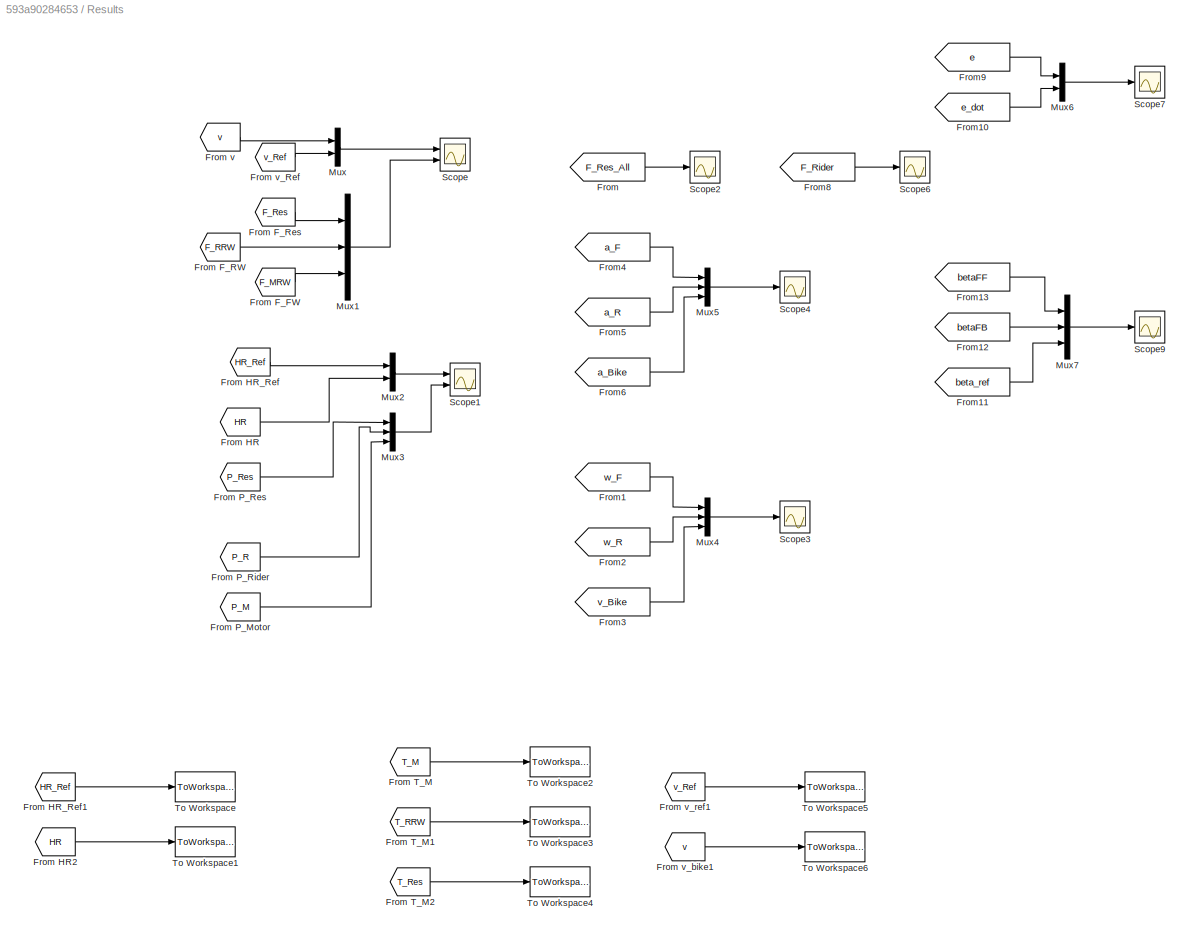
BLOCK [SubSystem] Results
  Ports = []
  RequestExecContextInheritance = off
BLOCK [From] Results/From
  GotoTag = F_Res_All
  TagVisibility = global
BLOCK [From] Results/From F_FW
  GotoTag = F_MRW
  TagVisibility = global
BLOCK [From] Results/From F_RW
  GotoTag = F_RRW
  TagVisibility = global
BLOCK [From] Results/From F_Res
  GotoTag = F_Res
  TagVisibility = global
BLOCK [From] Results/From HR
  GotoTag = HR
  TagVisibility = global
BLOCK [From] Results/From HR2
  GotoTag = HR
  TagVisibility = global
BLOCK [From] Results/From HR_Ref
  GotoTag = HR_Ref
  TagVisibility = global
BLOCK [From] Results/From HR_Ref1
  GotoTag = HR_Ref
  TagVisibility = global
BLOCK [From] Results/From P_Motor
  GotoTag = P_M
  TagVisibility = global
BLOCK [From] Results/From P_Res
  GotoTag = P_Res
  TagVisibility = global
BLOCK [From] Results/From P_Rider
  GotoTag = P_R
  TagVisibility = global
BLOCK [From] Results/From T_M
  GotoTag = T_M
  TagVisibility = global
BLOCK [From] Results/From T_M1
  GotoTag = T_RRW
  TagVisibility = global
BLOCK [From] Results/From T_M2
  GotoTag = T_Res
  TagVisibility = global
BLOCK [From] Results/From v
  GotoTag = v
  TagVisibility = global
BLOCK [From] Results/From v_Ref
  GotoTag = v_Ref
  TagVisibility = global
BLOCK [From] Results/From v_bike1
  GotoTag = v
  TagVisibility = global
BLOCK [From] Results/From v_ref1
  GotoTag = v_Ref
  TagVisibility = global
BLOCK [From] Results/From1
  GotoTag = w_F
  TagVisibility = global
BLOCK [From] Results/From10
  GotoTag = e_dot
  TagVisibility = global
BLOCK [From] Results/From11
  GotoTag = beta_ref
  TagVisibility = global
BLOCK [From] Results/From12
  GotoTag = betaFB
  TagVisibility = global
BLOCK [From] Results/From13
  GotoTag = betaFF
  TagVisibility = global
BLOCK [From] Results/From2
  GotoTag = w_R
  TagVisibility = global
BLOCK [From] Results/From3
  GotoTag = v_Bike
  TagVisibility = global
BLOCK [From] Results/From4
  GotoTag = a_F
  TagVisibility = global
BLOCK [From] Results/From5
  GotoTag = a_R
  TagVisibility = global
BLOCK [From] Results/From6
  GotoTag = a_Bike
  TagVisibility = global
BLOCK [From] Results/From8
  GotoTag = F_Rider
  TagVisibility = global
BLOCK [From] Results/From9
  GotoTag = e
  TagVisibility = global
BLOCK [Mux] Results/Mux
  DisplayOption = bar
  Inputs = 2
  Ports = [2, 1]
BLOCK [Mux] Results/Mux1
  DisplayOption = bar
  Inputs = 3
  Ports = [3, 1]
BLOCK [Mux] Results/Mux2
  DisplayOption = bar
  Inputs = 2
  Ports = [2, 1]
BLOCK [Mux] Results/Mux3
  DisplayOption = bar
  Inputs = 3
  Ports = [3, 1]
BLOCK [Mux] Results/Mux4
  DisplayOption = bar
  Inputs = 3
  Ports = [3, 1]
BLOCK [Mux] Results/Mux5
  DisplayOption = bar
  Inputs = 3
  Ports = [3, 1]
BLOCK [Mux] Results/Mux6
  DisplayOption = bar
  Inputs = 2
  Ports = [2, 1]
BLOCK [Mux] Results/Mux7
  DisplayOption = bar
  Inputs = 3
  Ports = [3, 1]
BLOCK [Scope] Results/Scope
  DataFormat = StructureWithTime
  Floating = off
  LimitDataPoints = off
  NumInputPorts = 2
  Ports = [2]
  SampleTime = 0
  ShowLegends = off
  TimeRange = 4500
  YMax = 25~200
  YMin = 0~-50
BLOCK [Scope] Results/Scope1
  DataFormat = StructureWithTime
  Floating = off
  LimitDataPoints = off
  NumInputPorts = 2
  Ports = [2]
  SampleTime = 0
  SaveName = ScopeData1
  ShowLegends = off
  TimeRange = 4500
  YMax = 155~375
  YMin = 75~0
BLOCK [Scope] Results/Scope2
  Floating = off
  NumInputPorts = 1
  Ports = [1]
  SaveName = ScopeData3
  ShowLegends = off
BLOCK [Scope] Results/Scope3
  Floating = off
  NumInputPorts = 1
  Ports = [1]
  SaveName = ScopeData4
  ShowLegends = off
BLOCK [Scope] Results/Scope4
  Floating = off
  NumInputPorts = 1
  Ports = [1]
  SaveName = ScopeData5
  ShowLegends = off
BLOCK [Scope] Results/Scope6
  Floating = off
  NumInputPorts = 1
  Ports = [1]
  SaveName = ScopeData7
  ShowLegends = off
BLOCK [Scope] Results/Scope7
  Floating = off
  NumInputPorts = 1
  Ports = [1]
  SaveName = ScopeData8
  ShowLegends = off
BLOCK [Scope] Results/Scope9
  Floating = off
  NumInputPorts = 1
  Ports = [1]
  SaveName = ScopeData10
  ShowLegends = off
BLOCK [ToWorkspace] Results/To Workspace
  FixptAsFi = on
  MaxDataPoints = inf
  Ports = [1]
  SampleTime = -1
  Save2DSignal = 3-D array (concatenate along third dimension)
  SaveFormat = Timeseries
  VariableName = HR_ref
BLOCK [ToWorkspace] Results/To Workspace1
  FixptAsFi = on
  MaxDataPoints = inf
  Ports = [1]
  SampleTime = -1
  Save2DSignal = 3-D array (concatenate along third dimension)
  SaveFormat = Timeseries
  VariableName = HR
BLOCK [ToWorkspace] Results/To Workspace2
  FixptAsFi = on
  MaxDataPoints = inf
  Ports = [1]
  SampleTime = -1
  Save2DSignal = 3-D array (concatenate along third dimension)
  SaveFormat = Timeseries
  VariableName = T_M
BLOCK [ToWorkspace] Results/To Workspace3
  FixptAsFi = on
  MaxDataPoints = inf
  Ports = [1]
  SampleTime = -1
  Save2DSignal = 3-D array (concatenate along third dimension)
  SaveFormat = Timeseries
  VariableName = T_RRW
BLOCK [ToWorkspace] Results/To Workspace4
  FixptAsFi = on
  MaxDataPoints = inf
  Ports = [1]
  SampleTime = -1
  Save2DSignal = 3-D array (concatenate along third dimension)
  SaveFormat = Timeseries
  VariableName = T_Res
BLOCK [ToWorkspace] Results/To Workspace5
  FixptAsFi = on
  MaxDataPoints = inf
  Ports = [1]
  SampleTime = -1
  Save2DSignal = 3-D array (concatenate along third dimension)
  SaveFormat = Timeseries
  VariableName = v_Ref
BLOCK [ToWorkspace] Results/To Workspace6
  FixptAsFi = on
  MaxDataPoints = inf
  Ports = [1]
  SampleTime = -1
  Save2DSignal = 3-D array (concatenate along third dimension)
  SaveFormat = Timeseries
  VariableName = v
BLOCK [SubSystem] Rider
  Ports = [1, 2]
  RequestExecContextInheritance = off
BLOCK [Reference] Rider/Human Con  REF=simulink/Continuous/PID Controller
  AntiWindupMode = none
  Controller = PID
  D = 0
  DOutDataTypeStr = Inherit: Inherit via internal rule
  DOutMax = []
  DOutMin = []
  DParamDataTypeStr = Inherit: Inherit via internal rule
  DParamMax = []
  DParamMin = []
  ExternalReset = none
  FilterContinuousStateAttributes = ''
  FilterMethod = Forward Euler
  FilterOutDataTypeStr = Inherit: Inherit via internal rule
  FilterOutMax = []
  FilterOutMin = []
  FilterRTWStateStorageClass = Auto
  FilterStateMustResolveToSignalObject = off
  Form = Parallel
  I = 10
  IOutDataTypeStr = Inherit: Inherit via internal rule
  IOutMax = []
  IOutMin = []
  IParamDataTypeStr = Inherit: Inherit via internal rule
  IParamMax = []
  IParamMin = []
  IgnoreLimit = off
  InitialConditionForFilter = 0
  InitialConditionForIntegrator = 0
  InitialConditionSource = internal
  IntegratorContinuousStateAttributes = ''
  IntegratorMethod = Forward Euler
  IntegratorOutDataTypeStr = Inherit: Inherit via internal rule
  IntegratorOutMax = []
  IntegratorOutMin = []
  IntegratorRTWStateStorageClass = Auto
  IntegratorStateMustResolveToSignalObject = off
  Kb = 1
  KbOutDataTypeStr = Inherit: Inherit via internal rule
  KbOutMax = []
  KbOutMin = []
  KbParamDataTypeStr = Inherit: Inherit via internal rule
  KbParamMax = []
  KbParamMin = []
  Kt = 1
  KtOutDataTypeStr = Inherit: Inherit via internal rule
  KtOutMax = []
  KtOutMin = []
  KtParamDataTypeStr = Inherit: Inherit via internal rule
  KtParamMax = []
  KtParamMin = []
  LimitOutput = on
  LinearizeAsGain = on
  LockScale = off
  LowerSaturationLimit = 0
  N = 0
  NOutDataTypeStr = Inherit: Inherit via internal rule
  NOutMax = []
  NOutMin = []
  NParamDataTypeStr = Inherit: Inherit via internal rule
  NParamMax = []
  NParamMin = []
  P = 100
  POutDataTypeStr = Inherit: Inherit via internal rule
  POutMax = []
  POutMin = []
  PParamDataTypeStr = Inherit: Inherit via internal rule
  PParamMax = []
  PParamMin = []
  Ports = [1, 1]
  RndMeth = Floor
  SampleTime = 1
  SaturateOnIntegerOverflow = off
  SaturationOutDataTypeStr = Inherit: Same as input
  SaturationOutMax = []
  SaturationOutMin = []
  SourceBlock = simulink/Continuous/PID Controller
  SourceType = PID 1dof
  SumAccumDataTypeStr = Inherit: Inherit via internal rule
  SumDAccumDataTypeStr = Inherit: Inherit via internal rule
  SumDOutDataTypeStr = Inherit: Inherit via internal rule
  SumDOutMax = []
  SumDOutMin = []
  SumI1AccumDataTypeStr = Inherit: Inherit via internal rule
  SumI1OutDataTypeStr = Inherit: Inherit via internal rule
  SumI1OutMax = []
  SumI1OutMin = []
  SumI2AccumDataTypeStr = Inherit: Inherit via internal rule
  SumI2OutDataTypeStr = Inherit: Inherit via internal rule
  SumI2OutMax = []
  SumI2OutMin = []
  SumI3AccumDataTypeStr = Inherit: Inherit via internal rule
  SumI3OutDataTypeStr = Inherit: Inherit via internal rule
  SumI3OutMax = []
  SumI3OutMin = []
  SumOutDataTypeStr = Inherit: Inherit via internal rule
  SumOutMax = []
  SumOutMin = []
  TimeDomain = Continuous-time
  TrackingMode = off
  UpperSaturationLimit = 900
  ZeroCross = on
BLOCK [Inport] Rider/In1
  IconDisplay = Signal name
BLOCK [SubSystem] Rider/Limit F_Rider
  Ports = [3, 1]
  RequestExecContextInheritance = off
BLOCK [Constant] Rider/Limit F_Rider/Constant
  Value = 0.744
BLOCK [Constant] Rider/Limit F_Rider/Constant1
  Value = rider.P_max
BLOCK [Product] Rider/Limit F_Rider/Divide1
  InputSameDT = off
  Inputs = */
  OutDataTypeStr = Inherit: Inherit via internal rule
  Ports = [2, 1]
  RndMeth = Floor
  SaturateOnIntegerOverflow = off
BLOCK [Product] Rider/Limit F_Rider/F_max
  InputSameDT = off
  Inputs = **/
  OutDataTypeStr = Inherit: Inherit via internal rule
  Ports = [3, 1]
  RndMeth = Floor
  SaturateOnIntegerOverflow = off
BLOCK [From] Rider/Limit F_Rider/From w_R1
  GotoTag = w_R
  TagVisibility = global
BLOCK [Gain] Rider/Limit F_Rider/Gain
  Gain = 0.068
  OutDataTypeStr = Inherit: Inherit via internal rule
  ParamDataTypeStr = Inherit: Inherit via internal rule
  SaturateOnIntegerOverflow = off
BLOCK [Inport] Rider/Limit F_Rider/In1
  IconDisplay = Signal name
BLOCK [Inport] Rider/Limit F_Rider/In2
  IconDisplay = Signal name
  Port = 2
BLOCK [Inport] Rider/Limit F_Rider/In3
  IconDisplay = Signal name
  Port = 3
BLOCK [Outport] Rider/Limit F_Rider/Out1
  IconDisplay = Signal name
BLOCK [Sum] Rider/Limit F_Rider/Subtract
  InputSameDT = off
  Inputs = +-
  OutDataTypeStr = Inherit: Inherit via internal rule
  Ports = [2, 1]
  SaturateOnIntegerOverflow = off
BLOCK [Sum] Rider/Limit F_Rider/Subtract1
  InputSameDT = off
  Inputs = -+
  OutDataTypeStr = Inherit: Inherit via internal rule
  Ports = [2, 1]
  SaturateOnIntegerOverflow = off
BLOCK [Switch] Rider/Limit F_Rider/Switch
  Criteria = u2 > Threshold
  InputSameDT = off
  SaturateOnIntegerOverflow = off
BLOCK [Outport] Rider/Out1
  IconDisplay = Signal name
  Port = 2
BLOCK [Outport] Rider/Out2
  IconDisplay = Signal name
BLOCK [Product] Rider/Product1
  InputSameDT = off
  OutDataTypeStr = Inherit: Inherit via internal rule
  Ports = [2, 1]
  RndMeth = Floor
  SaturateOnIntegerOverflow = off
BLOCK [Saturate] Rider/Saturation
  InputPortMap = u0
  LowerLimit = 0
  Ports = [1, 1]
  UpperLimit = 900
BLOCK [Goto] Rider/To F_Rider
  GotoTag = F_Rider
  TagVisibility = global
BLOCK [Constant] Rider/r_C: crank length [m]
  Value = bike.r_C
BLOCK [Constant] Rider/tau: transmission ratio [-]
  Value = bike.tau
BLOCK [SubSystem] Riding Resistances
  Ports = [1, 1]
  RequestExecContextInheritance = off
BLOCK [Sum] Riding Resistances/Add
  InputSameDT = off
  Inputs = +++
  OutDataTypeStr = Inherit: Inherit via internal rule
  Ports = [3, 1]
  SaturateOnIntegerOverflow = off
BLOCK [SubSystem] Riding Resistances/Aerodynamic drag force [N]
  Ports = [1, 1]
  RequestExecContextInheritance = off
BLOCK [Constant] Riding Resistances/Aerodynamic drag force [N]/A: Front Area [m²]
  Value = bike.A
BLOCK [Sum] Riding Resistances/Aerodynamic drag force [N]/Add1
  InputSameDT = off
  OutDataTypeStr = Inherit: Inherit via internal rule
  Ports = [2, 1]
  SaturateOnIntegerOverflow = off
BLOCK [Product] Riding Resistances/Aerodynamic drag force [N]/F_Drag: Aerodynamical drag force [N]
  InputSameDT = off
  Inputs = 5
  OutDataTypeStr = Inherit: Inherit via internal rule
  Ports = [5, 1]
  RndMeth = Floor
  SaturateOnIntegerOverflow = off
BLOCK [Constant] Riding Resistances/Aerodynamic drag force [N]/Factor
  Value = 0.5
BLOCK [Inport] Riding Resistances/Aerodynamic drag force [N]/In1
  IconDisplay = Signal name
BLOCK [Math] Riding Resistances/Aerodynamic drag force [N]/Math Function
  Operator = square
  Ports = [1, 1]
BLOCK [Outport] Riding Resistances/Aerodynamic drag force [N]/Out1
  IconDisplay = Signal name
BLOCK [Constant] Riding Resistances/Aerodynamic drag force [N]/c_w: Drag coefficient [-] 
  Value = bike.cw
BLOCK [Constant] Riding Resistances/Aerodynamic drag force [N]/roh: air density [kg//m³]
  Value = 1.25
BLOCK [Constant] Riding Resistances/Aerodynamic drag force [N]/v_w: Headwind [m//s]
  Value = route.v_w
BLOCK [Reference] Riding Resistances/Angle Conversion  REF=aerolibconvert2/Angle Conversion
  IU = deg
  OU = rad
  Ports = [1, 1]
  SourceBlock = aerolibconvert2/Angle Conversion
  SourceType = Angle Conversion
BLOCK [Outport] Riding Resistances/F_Res
  IconDisplay = Signal name
BLOCK [FromWorkspace] Riding Resistances/From Workspace
  SampleTime = 0
  VariableName = ALPHA
  ZeroCross = on
BLOCK [SubSystem] Riding Resistances/Gradient force [N]
  Ports = [3, 1]
  RequestExecContextInheritance = off
BLOCK [Product] Riding Resistances/Gradient force [N]/F_Slope: Gradient force [N]
  InputSameDT = off
  Inputs = 3
  OutDataTypeStr = Inherit: Inherit via internal rule
  Ports = [3, 1]
  RndMeth = Floor
  SaturateOnIntegerOverflow = off
BLOCK [Inport] Riding Resistances/Gradient force [N]/In1
  IconDisplay = Signal name
BLOCK [Inport] Riding Resistances/Gradient force [N]/In2
  IconDisplay = Signal name
  Port = 2
BLOCK [Inport] Riding Resistances/Gradient force [N]/In3
  IconDisplay = Signal name
  Port = 3
BLOCK [Outport] Riding Resistances/Gradient force [N]/Out1
  IconDisplay = Signal name
BLOCK [Trigonometry] Riding Resistances/Gradient force [N]/Trigonometric Function
  Ports = [1, 1]
BLOCK [MultiPortSwitch] Riding Resistances/Multiport Switch
  InputSameDT = off
  Ports = [4, 1]
  SaturateOnIntegerOverflow = off
BLOCK [Mux] Riding Resistances/Mux
  DisplayOption = bar
  Inputs = 3
  Ports = [3, 1]
BLOCK [SubSystem] Riding Resistances/Rolling resistance [N]
  Ports = [4, 1]
  RequestExecContextInheritance = off
BLOCK [Sum] Riding Resistances/Rolling resistance [N]/Add
  InputSameDT = off
  OutDataTypeStr = Inherit: Inherit via internal rule
  Ports = [2, 1]
  SaturateOnIntegerOverflow = off
BLOCK [Product] Riding Resistances/Rolling resistance [N]/F_DRoll: Dynamic Rolling resistance [N]
  InputSameDT = off
  OutDataTypeStr = Inherit: Inherit via internal rule
  Ports = [2, 1]
  RndMeth = Floor
  SaturateOnIntegerOverflow = off
BLOCK [Product] Riding Resistances/Rolling resistance [N]/F_SRoll: Static Rolling resistance [N]
  InputSameDT = off
  Inputs = 4
  OutDataTypeStr = Inherit: Inherit via internal rule
  Ports = [4, 1]
  RndMeth = Floor
  SaturateOnIntegerOverflow = off
BLOCK [Inport] Riding Resistances/Rolling resistance [N]/In1
  IconDisplay = Signal name
  Port = 2
BLOCK [Inport] Riding Resistances/Rolling resistance [N]/In2
  IconDisplay = Signal name
  Port = 3
BLOCK [Inport] Riding Resistances/Rolling resistance [N]/In3
  IconDisplay = Signal name
  Port = 4
BLOCK [Inport] Riding Resistances/Rolling resistance [N]/In4
  IconDisplay = Signal name
BLOCK [Outport] Riding Resistances/Rolling resistance [N]/Out1
  IconDisplay = Signal name
BLOCK [Trigonometry] Riding Resistances/Rolling resistance [N]/Trigonometric Function1
  Operator = cos
  Ports = [1, 1]
BLOCK [Constant] Riding Resistances/Rolling resistance [N]/f_DR: Dynamic Rolling resistance coefficient [Ns//m]
  Value = bike.f_DR
BLOCK [Constant] Riding Resistances/Rolling resistance [N]/f_SR: Rolling resistance coefficient [-]
  Value = bike.f_SR
BLOCK [SubSystem] Riding Resistances/Signal Builder
  ClipboardFcn = sigbuilder_block('clipboard');
  CloseFcn = sigbuilder_block('close');
  ContinueFcn = sigbuilder_block('continue');
  CopyFcn = sigbuilder_block('copy');
  DeleteFcn = sigbuilder_block('delete');
  LoadFcn = sigbuilder_block('load');
  MaskHideContents = on
  ModelCloseFcn = sigbuilder_block('modelClose');
  NameChangeFcn = sigbuilder_block('namechange');
  OpenFcn = sigbuilder_block('open',[437.25 118.5 550.5 394.5 ]);
  PauseFcn = sigbuilder_block('pause');
  Ports = [0, 1]
  PreSaveFcn = sigbuilder_block('preSave');
  RequestExecContextInheritance = off
  StartFcn = sigbuilder_block('start');
  StopFcn = sigbuilder_block('stop');
  Tag = STV Subsys
BLOCK [Demux] Riding Resistances/Signal Builder/Demux
  Outputs = 1
  Ports = [1, 1]
  Tag = STV Demux
BLOCK [FromWorkspace] Riding Resistances/Signal Builder/FromWs
  SampleTime = 0
  Tag = STV FromWs
  VariableName = tuvar
  ZeroCross = on
BLOCK [Outport] Riding Resistances/Signal Builder/Signal 2
  IconDisplay = Port number
  Tag = STV Outport
BLOCK [Goto] Riding Resistances/To F_Res
  GotoTag = F_Res
  TagVisibility = global
BLOCK [Goto] Riding Resistances/To F_Res_All
  GotoTag = F_Res_All
  TagVisibility = global
BLOCK [Constant] Riding Resistances/alpha: slope [°]
BLOCK [Constant] Riding Resistances/constant
  Value = 3
BLOCK [Constant] Riding Resistances/g: Gravity [m//s²]
  Value = route.g
BLOCK [Constant] Riding Resistances/m_B: mass bicycle [kg]
  Value = bike.m
BLOCK [Constant] Riding Resistances/m_R: mass rider [kg]
  Value = rider.m
BLOCK [Sum] Riding Resistances/m_T: Mass bicycle + rider [kg]
  InputSameDT = off
  OutDataTypeStr = Inherit: Inherit via internal rule
  Ports = [2, 1]
  SaturateOnIntegerOverflow = off
BLOCK [Inport] Riding Resistances/v_Bike
  IconDisplay = Signal name
BLOCK [Saturate] Saturation
  InputPortMap = u0
  LowerLimit = 0
  Ports = [1, 1]
  UpperLimit = 2
  ZeroCross = off
BLOCK [Sum] Sum
  IconShape = round
  InputSameDT = off
  Inputs = +|+
  OutDataTypeStr = Inherit: Inherit via internal rule
  Ports = [2, 1]
  SaturateOnIntegerOverflow = off
BLOCK [Sum] Sum1
  IconShape = round
  InputSameDT = off
  Inputs = -+|
  OutDataTypeStr = Inherit: Inherit via internal rule
  Ports = [2, 1]
  SaturateOnIntegerOverflow = off
BLOCK [Sum] Sum2
  IconShape = round
  InputSameDT = off
  Inputs = |+-
  OutDataTypeStr = Inherit: Inherit via internal rule
  Ports = [2, 1]
  SaturateOnIntegerOverflow = off
BLOCK [Goto] To HR
  GotoTag = HR
  TagVisibility = global
BLOCK [Goto] To v
  GotoTag = v
  TagVisibility = global
BLOCK [Gain] m//s to km//h
  Gain = 3.6
  OutDataTypeStr = Inherit: Inherit via internal rule
  ParamDataTypeStr = Inherit: Inherit via internal rule
  SaturateOnIntegerOverflow = off
BLOCK [SubSystem] v_Ref
  Ports = [0, 1]
  RequestExecContextInheritance = off
BLOCK [Constant] v_Ref/Constant
  Value = 2*pi
BLOCK [Constant] v_Ref/Constant1
  Value = 60
BLOCK [Constant] v_Ref/Constant2
BLOCK [FromWorkspace] v_Ref/From Workspace
  SampleTime = 0
  VariableName = NDES
  ZeroCross = on
BLOCK [MultiPortSwitch] v_Ref/Multiport Switch
  InputSameDT = off
  Inputs = 2
  Ports = [3, 1]
  SaturateOnIntegerOverflow = off
BLOCK [Outport] v_Ref/Out1
  IconDisplay = Signal name
BLOCK [Product] v_Ref/Product
  InputSameDT = off
  Inputs = ****/
  OutDataTypeStr = Inherit: Inherit via internal rule
  Ports = [5, 1]
  RndMeth = Floor
  SaturateOnIntegerOverflow = off
BLOCK [Goto] v_Ref/To v_Ref
  GotoTag = v_Ref
  TagVisibility = global
BLOCK [Gain] v_Ref/km//h to m//s
  Gain = 3.6
  OutDataTypeStr = Inherit: Inherit via internal rule
  ParamDataTypeStr = Inherit: Inherit via internal rule
  SaturateOnIntegerOverflow = off
BLOCK [Constant] v_Ref/n_des: desired pedaling frequency [rpm]
  Value = rider.n_des
BLOCK [Constant] v_Ref/r_RW: radius of rear wheel [m]
  Value = bike.r_RW
BLOCK [Constant] v_Ref/tau: transmission ratio [-]
  Value = bike.tau
LINE Bicycle/Front wheel/In1:1 -> Bicycle/Front wheel/a_F: angular acceleration of front wheel [rad//s²] :1
NET Bicycle/Front wheel/a_F: angular acceleration of front wheel [rad//s²] :1 -> Bicycle/Front wheel/To a_F:1, Bicycle/Front wheel/w_F: angular velocity of front wheel [rad//s]:1
LINE Bicycle/Front wheel/r_FW: radius of front wheel [m]:1 -> Bicycle/Front wheel/a_F: angular acceleration of front wheel [rad//s²] :2
LINE Bicycle/Front wheel/w_F: angular velocity of front wheel [rad//s]:1 -> Bicycle/Front wheel/To w_F:1
LINE Bicycle/In1:1 -> Bicycle/Rider Forces:1
LINE Bicycle/In2:1 -> Bicycle/Motor Forces:1
NET Bicycle/In3:1 -> Bicycle/Resistances:1, Bicycle/Total Forces on bicycle [N]:3
LINE Bicycle/Mass bicycle/Divide1:1 -> Bicycle/Mass bicycle/M: Mass of bicycle rider system [kg]:2
LINE Bicycle/Mass bicycle/Divide2:1 -> Bicycle/Mass bicycle/M: Mass of bicycle rider system [kg]:3
LINE Bicycle/Mass bicycle/I_F: Mass moment of inertia of front wheel [kgm²]:1 -> Bicycle/Mass bicycle/Divide2:1
LINE Bicycle/Mass bicycle/I_RW: Mass moment of inertia of rear wheel [kgm²]:1 -> Bicycle/Mass bicycle/Divide1:1
LINE Bicycle/Mass bicycle/M: Mass of bicycle rider system [kg]:1 -> Bicycle/Mass bicycle/Out1:1
LINE Bicycle/Mass bicycle/Math Function1:1 -> Bicycle/Mass bicycle/Divide2:2
LINE Bicycle/Mass bicycle/Math Function:1 -> Bicycle/Mass bicycle/Divide1:2
LINE Bicycle/Mass bicycle/m_B: mass of bicycle [kg]:1 -> Bicycle/Mass bicycle/m_T: Mass of bicycle + rider [kg]:2
LINE Bicycle/Mass bicycle/m_R: mass of rider [kg]:1 -> Bicycle/Mass bicycle/m_T: Mass of bicycle + rider [kg]:1
LINE Bicycle/Mass bicycle/m_T: Mass of bicycle + rider [kg]:1 -> Bicycle/Mass bicycle/M: Mass of bicycle rider system [kg]:1
LINE Bicycle/Mass bicycle/r_F: front wheel radius [m]:1 -> Bicycle/Mass bicycle/Math Function1:1
LINE Bicycle/Mass bicycle/r_RW: rear wheel radius [m]:1 -> Bicycle/Mass bicycle/Math Function:1
LINE Bicycle/Mass bicycle:1 -> Bicycle/a_Bike: acceleration of bicycle [m//s²]:2
NET Bicycle/Motor Forces/F_MRW: Motor Force at rear wheel [N]:1 -> Bicycle/Motor Forces/Out1:1, Bicycle/Motor Forces/To F_MRW:1
LINE Bicycle/Motor Forces/From T_RC:1 -> Bicycle/Motor Forces/T_MP: Motor Torque at pedals [Nm]:2
LINE Bicycle/Motor Forces/From w_F:1 -> Bicycle/Motor Forces/P_M: Motor Power [W]:1
NET Bicycle/Motor Forces/In2:1 -> Bicycle/Motor Forces/T_MP: Motor Torque at pedals [Nm]:1, Bicycle/Motor Forces/To beta_ref:1
LINE Bicycle/Motor Forces/P_M: Motor Power [W]:1 -> Bicycle/Motor Forces/To P_M:1
LINE Bicycle/Motor Forces/Saturation:1 -> Bicycle/Motor Forces/T_MRW: Motor torque at rear wheel [Nm]:1
LINE Bicycle/Motor Forces/T_MP: Motor Torque at pedals [Nm]:1 -> Bicycle/Motor Forces/Saturation:1
NET Bicycle/Motor Forces/T_MRW: Motor torque at rear wheel [Nm]:1 -> Bicycle/Motor Forces/F_MRW: Motor Force at rear wheel [N]:1, Bicycle/Motor Forces/P_M: Motor Power [W]:2, Bicycle/Motor Forces/To T_M:1
LINE Bicycle/Motor Forces/r_RW: radius of rear wheel [m]:1 -> Bicycle/Motor Forces/F_MRW: Motor Force at rear wheel [N]:2
LINE Bicycle/Motor Forces/tau: transmission ratio [-]:1 -> Bicycle/Motor Forces/T_MRW: Motor torque at rear wheel [Nm]:2
LINE Bicycle/Motor Forces:1 -> Bicycle/Total Forces on bicycle [N]:2
LINE Bicycle/Rear wheel/In1:1 -> Bicycle/Rear wheel/a_R: angular acceleration of rear wheel [rad//s²] :2
NET Bicycle/Rear wheel/a_R: angular acceleration of rear wheel [rad//s²] :1 -> Bicycle/Rear wheel/To a_R:1, Bicycle/Rear wheel/w_R: angular velocity of rear wheel [rad//s]:1
LINE Bicycle/Rear wheel/r_RW: radius of rear wheel [m]:1 -> Bicycle/Rear wheel/a_R: angular acceleration of rear wheel [rad//s²] :1
LINE Bicycle/Rear wheel/w_R: angular velocity of rear wheel [rad//s]:1 -> Bicycle/Rear wheel/To w_R:1
LINE Bicycle/Resistances/From w_R2:1 -> Bicycle/Resistances/P_Res: Riding resistances [W]:2
LINE Bicycle/Resistances/In1:1 -> Bicycle/Resistances/T_Res: Torque Riding resistances [Nm]:1
LINE Bicycle/Resistances/P_Res: Riding resistances [W]:1 -> Bicycle/Resistances/To P_Res:1
NET Bicycle/Resistances/T_Res: Torque Riding resistances [Nm]:1 -> Bicycle/Resistances/P_Res: Riding resistances [W]:1, Bicycle/Resistances/To T_Res1:1
LINE Bicycle/Resistances/r_RW: radius of rear wheel [m]:1 -> Bicycle/Resistances/T_Res: Torque Riding resistances [Nm]:2
NET Bicycle/Rider Forces/F_RRW: Rider Force at rear wheel [N]:1 -> Bicycle/Rider Forces/Out1:1, Bicycle/Rider Forces/To F_RRW:1
LINE Bicycle/Rider Forces/From w_R:1 -> Bicycle/Rider Forces/P_R: Power output of rider [W]:1
LINE Bicycle/Rider Forces/In1:1 -> Bicycle/Rider Forces/T_RC: Torque Rider at cranks[Nm]:1
NET Bicycle/Rider Forces/P_R: Power output of rider [W]:1 -> Bicycle/Rider Forces/Out2:1, Bicycle/Rider Forces/To P_R:1
NET Bicycle/Rider Forces/T_RC: Torque Rider at cranks[Nm]:1 -> Bicycle/Rider Forces/Goto2:1, Bicycle/Rider Forces/T_RRW: Torque rider at rear wheel [Nm]:1
NET Bicycle/Rider Forces/T_RRW: Torque rider at rear wheel [Nm]:1 -> Bicycle/Rider Forces/F_RRW: Rider Force at rear wheel [N]:1, Bicycle/Rider Forces/Goto1:1, Bicycle/Rider Forces/P_R: Power output of rider [W]:2
LINE Bicycle/Rider Forces/r_C: Crank length [m]:1 -> Bicycle/Rider Forces/T_RC: Torque Rider at cranks[Nm]:2
LINE Bicycle/Rider Forces/r_RW: radius of rear wheel [m]:1 -> Bicycle/Rider Forces/F_RRW: Rider Force at rear wheel [N]:2
LINE Bicycle/Rider Forces/tau: transmission ratio [-]:1 -> Bicycle/Rider Forces/T_RRW: Torque rider at rear wheel [Nm]:2
LINE Bicycle/Rider Forces:1 -> Bicycle/Out2:1
LINE Bicycle/Rider Forces:2 -> Bicycle/Total Forces on bicycle [N]:1
LINE Bicycle/Total Forces on bicycle [N]:1 -> Bicycle/a_Bike: acceleration of bicycle [m//s²]:1
NET Bicycle/a_Bike: acceleration of bicycle [m//s²]:1 -> Bicycle/Front wheel:1, Bicycle/Rear wheel:1, Bicycle/To a_Bike:1, Bicycle/v_Bike: Velocity of bicycle [m//s]:1
NET Bicycle/v_Bike: Velocity of bicycle [m//s]:1 -> Bicycle/Out1:1, Bicycle/To v_Bike:1
NET Bicycle:1 -> Sum1:1, m//s to km//h:1
LINE Bicycle:2 -> Human:1
LINE Feedback Control/Constant:1 -> Feedback Control/Multiport Switch:1
LINE Feedback Control/Derivative:1 -> Feedback Control/Goto:1
NET Feedback Control/In1:1 -> Feedback Control/Derivative:1, Feedback Control/Goto1:1, Feedback Control/Quasi-1-SMC:1, Feedback Control/Simple-1-SMC:1
LINE Feedback Control/Multiport Switch:1 -> Feedback Control/Saturation:1
LINE Feedback Control/Quasi-1-SMC/In1:1 -> Feedback Control/Quasi-1-SMC/Sliding Surface:1
LINE Feedback Control/Quasi-1-SMC/Sliding Surface/Abs:1 -> Feedback Control/Quasi-1-SMC/Sliding Surface/Add:1
LINE Feedback Control/Quasi-1-SMC/Sliding Surface/Add:1 -> Feedback Control/Quasi-1-SMC/Sliding Surface/Divide:2
LINE Feedback Control/Quasi-1-SMC/Sliding Surface/Constant1:1 -> Feedback Control/Quasi-1-SMC/Sliding Surface/Divide1:2
LINE Feedback Control/Quasi-1-SMC/Sliding Surface/Constant2:1 -> Feedback Control/Quasi-1-SMC/Sliding Surface/Subtract:2
LINE Feedback Control/Quasi-1-SMC/Sliding Surface/Constant:1 -> Feedback Control/Quasi-1-SMC/Sliding Surface/Divide1:1
LINE Feedback Control/Quasi-1-SMC/Sliding Surface/Derivative1:1 -> Feedback Control/Quasi-1-SMC/Sliding Surface/sum:2
LINE Feedback Control/Quasi-1-SMC/Sliding Surface/Divide1:1 -> Feedback Control/Quasi-1-SMC/Sliding Surface/Subtract:1
LINE Feedback Control/Quasi-1-SMC/Sliding Surface/Divide:1 -> Feedback Control/Quasi-1-SMC/Sliding Surface/Gain4:1
LINE Feedback Control/Quasi-1-SMC/Sliding Surface/From:1 -> Feedback Control/Quasi-1-SMC/Sliding Surface/Derivative1:1
LINE Feedback Control/Quasi-1-SMC/Sliding Surface/Gain1:1 -> Feedback Control/Quasi-1-SMC/Sliding Surface/Divide1:3
LINE Feedback Control/Quasi-1-SMC/Sliding Surface/Gain2:1 -> Feedback Control/Quasi-1-SMC/Sliding Surface/Out1:1
LINE Feedback Control/Quasi-1-SMC/Sliding Surface/Gain4:1 -> Feedback Control/Quasi-1-SMC/Sliding Surface/sum:1
NET Feedback Control/Quasi-1-SMC/Sliding Surface/In1:1 -> Feedback Control/Quasi-1-SMC/Sliding Surface/Abs:1, Feedback Control/Quasi-1-SMC/Sliding Surface/Divide:1
LINE Feedback Control/Quasi-1-SMC/Sliding Surface/Subtract:1 -> Feedback Control/Quasi-1-SMC/Sliding Surface/Gain2:1
LINE Feedback Control/Quasi-1-SMC/Sliding Surface/a1:1 -> Feedback Control/Quasi-1-SMC/Sliding Surface/sum:3
LINE Feedback Control/Quasi-1-SMC/Sliding Surface/a2:1 -> Feedback Control/Quasi-1-SMC/Sliding Surface/sum:4
LINE Feedback Control/Quasi-1-SMC/Sliding Surface/epsilon: saturation:1 -> Feedback Control/Quasi-1-SMC/Sliding Surface/Add:2
LINE Feedback Control/Quasi-1-SMC/Sliding Surface/sum:1 -> Feedback Control/Quasi-1-SMC/Sliding Surface/Gain1:1
LINE Feedback Control/Quasi-1-SMC/Sliding Surface/x1:1 -> Feedback Control/Quasi-1-SMC/Sliding Surface/a1:1
LINE Feedback Control/Quasi-1-SMC/Sliding Surface/x2:1 -> Feedback Control/Quasi-1-SMC/Sliding Surface/a2:1
LINE Feedback Control/Quasi-1-SMC/Sliding Surface:1 -> Feedback Control/Quasi-1-SMC/Out1:1
LINE Feedback Control/Quasi-1-SMC:1 -> Feedback Control/Multiport Switch:3
NET Feedback Control/Saturation:1 -> Feedback Control/Goto3:1, Feedback Control/Out1:1
LINE Feedback Control/Simple-1-SMC/In1:1 -> Feedback Control/Simple-1-SMC/Sliding Surface:1
LINE Feedback Control/Simple-1-SMC/Sliding Surface/Constant1:1 -> Feedback Control/Simple-1-SMC/Sliding Surface/Divide1:2
LINE Feedback Control/Simple-1-SMC/Sliding Surface/Constant2:1 -> Feedback Control/Simple-1-SMC/Sliding Surface/Subtract:2
LINE Feedback Control/Simple-1-SMC/Sliding Surface/Constant:1 -> Feedback Control/Simple-1-SMC/Sliding Surface/Divide1:1
LINE Feedback Control/Simple-1-SMC/Sliding Surface/Derivative1:1 -> Feedback Control/Simple-1-SMC/Sliding Surface/sum:2
LINE Feedback Control/Simple-1-SMC/Sliding Surface/Divide1:1 -> Feedback Control/Simple-1-SMC/Sliding Surface/Subtract:1
LINE Feedback Control/Simple-1-SMC/Sliding Surface/From:1 -> Feedback Control/Simple-1-SMC/Sliding Surface/Derivative1:1
LINE Feedback Control/Simple-1-SMC/Sliding Surface/Gain1:1 -> Feedback Control/Simple-1-SMC/Sliding Surface/Divide1:3
LINE Feedback Control/Simple-1-SMC/Sliding Surface/Gain4:1 -> Feedback Control/Simple-1-SMC/Sliding Surface/sum:1
LINE Feedback Control/Simple-1-SMC/Sliding Surface/In1:1 -> Feedback Control/Simple-1-SMC/Sliding Surface/Sign:1
LINE Feedback Control/Simple-1-SMC/Sliding Surface/Sign:1 -> Feedback Control/Simple-1-SMC/Sliding Surface/Gain4:1
LINE Feedback Control/Simple-1-SMC/Sliding Surface/Subtract:1 -> Feedback Control/Simple-1-SMC/Sliding Surface/Out1:1
LINE Feedback Control/Simple-1-SMC/Sliding Surface/a1:1 -> Feedback Control/Simple-1-SMC/Sliding Surface/sum:3
LINE Feedback Control/Simple-1-SMC/Sliding Surface/a2:1 -> Feedback Control/Simple-1-SMC/Sliding Surface/sum:4
LINE Feedback Control/Simple-1-SMC/Sliding Surface/sum:1 -> Feedback Control/Simple-1-SMC/Sliding Surface/Gain1:1
LINE Feedback Control/Simple-1-SMC/Sliding Surface/x1:1 -> Feedback Control/Simple-1-SMC/Sliding Surface/a1:1
LINE Feedback Control/Simple-1-SMC/Sliding Surface/x2:1 -> Feedback Control/Simple-1-SMC/Sliding Surface/a2:1
LINE Feedback Control/Simple-1-SMC/Sliding Surface:1 -> Feedback Control/Simple-1-SMC/Out1:1
LINE Feedback Control/Simple-1-SMC:1 -> Feedback Control/Multiport Switch:2
LINE Feedback Control:1 -> Sum:2
LINE Feedforward Control/Constant:1 -> Feedforward Control/Subtract:1
LINE Feedforward Control/Divide:1 -> Feedforward Control/Subtract:2
LINE Feedforward Control/Feedforward Control/Constant:1 -> Feedforward Control/Feedforward Control/Product2:2
LINE Feedforward Control/Feedforward Control/In1:1 -> Feedforward Control/Feedforward Control/Power_Norm to Power1:1
LINE Feedforward Control/Feedforward Control/Power_Norm to Power1/In1:1 -> Feedforward Control/Feedforward Control/Power_Norm to Power1/Product:1
LINE Feedforward Control/Feedforward Control/Power_Norm to Power1/P_max: maximum rider power [W]:1 -> Feedforward Control/Feedforward Control/Power_Norm to Power1/Product:2
LINE Feedforward Control/Feedforward Control/Power_Norm to Power1/Product:1 -> Feedforward Control/Feedforward Control/Power_Norm to Power1/Out1:1
LINE Feedforward Control/Feedforward Control/Power_Norm to Power1:1 -> Feedforward Control/Feedforward Control/Product:1
LINE Feedforward Control/Feedforward Control/Product2:1 -> Feedforward Control/Feedforward Control/Product:2
LINE Feedforward Control/Feedforward Control/Product:1 -> Feedforward Control/Feedforward Control/Out1:1
LINE Feedforward Control/Feedforward Control/n_des: desired pedaling frequency [rpm]:1 -> Feedforward Control/Feedforward Control/Product2:1
LINE Feedforward Control/Feedforward Control:1 -> Feedforward Control/Divide:1
LINE Feedforward Control/In1:1 -> Feedforward Control/Divide:2
LINE Feedforward Control/In2:1 -> Feedforward Control/Feedforward Control:1
NET Feedforward Control/Subtract:1 -> Feedforward Control/Goto2:1, Feedforward Control/Out1:1
LINE Feedforward Control:1 -> Sum:1
LINE From v_Bike:1 -> Riding Resistances:1
LINE HR_Norm to HR/Add:1 -> HR_Norm to HR/Out1:1
LINE HR_Norm to HR/HR_Rest:1 -> HR_Norm to HR/Add:2
LINE HR_Norm to HR/HR_max:1 -> HR_Norm to HR/Product:2
LINE HR_Norm to HR/In1:1 -> HR_Norm to HR/Product:1
LINE HR_Norm to HR/Product:1 -> HR_Norm to HR/Add:1
LINE HR_Norm to HR:1 -> To HR:1
LINE Heart rate profile/Choose HR_Profile:1 -> Heart rate profile/Multiport Switch:1
LINE Heart rate profile/Constant:1 -> Heart rate profile/Multiport Switch:2
LINE Heart rate profile/From Workspace:1 -> Heart rate profile/Multiport Switch:4
LINE Heart rate profile/HR to HR_Norm/Divide:1 -> Heart rate profile/HR to HR_Norm/Out1:1
LINE Heart rate profile/HR to HR_Norm/HR_Rest:1 -> Heart rate profile/HR to HR_Norm/Subtract:2
LINE Heart rate profile/HR to HR_Norm/HR_max:1 -> Heart rate profile/HR to HR_Norm/Divide:2
LINE Heart rate profile/HR to HR_Norm/In1:1 -> Heart rate profile/HR to HR_Norm/Saturation:1
LINE Heart rate profile/HR to HR_Norm/Saturation:1 -> Heart rate profile/HR to HR_Norm/Subtract:1
LINE Heart rate profile/HR to HR_Norm/Subtract:1 -> Heart rate profile/HR to HR_Norm/Divide:1
NET Heart rate profile/HR to HR_Norm:1 -> Heart rate profile/HR_Ref_Norm:1, Heart rate profile/Out1:1
NET Heart rate profile/Multiport Switch:1 -> Heart rate profile/HR to HR_Norm:1, Heart rate profile/To HR_Ref:1
LINE Heart rate profile/Signal Builder:1 -> Heart rate profile/Multiport Switch:3
NET Heart rate profile:1 -> Inverse Nonlinear Human Model:1, Sum2:1
LINE Human/In1:1 -> Human/Power to Power_Norm:1
LINE Human/Nonlinear Human Model/In1:1 -> Human/Nonlinear Human Model/Parameter a2:1
NET Human/Nonlinear Human Model/Integrator1:1 -> Human/Nonlinear Human Model/Out2:1, Human/Nonlinear Human Model/Parameter a3:1, Human/Nonlinear Human Model/Parameter a6=a2:1
NET Human/Nonlinear Human Model/Integrator:1 -> Human/Nonlinear Human Model/NonlinPart:1, Human/Nonlinear Human Model/Out1:1, Human/Nonlinear Human Model/Parameter a1:1
LINE Human/Nonlinear Human Model/NonlinPart/Add:1 -> Human/Nonlinear Human Model/NonlinPart/Divide1:2
LINE Human/Nonlinear Human Model/NonlinPart/Constant:1 -> Human/Nonlinear Human Model/NonlinPart/Add:1
LINE Human/Nonlinear Human Model/NonlinPart/Divide1:1 -> Human/Nonlinear Human Model/NonlinPart/Out1:1
NET Human/Nonlinear Human Model/NonlinPart/In2:1 -> Human/Nonlinear Human Model/NonlinPart/Parameter a4:1, Human/Nonlinear Human Model/NonlinPart/Subtract:1
LINE Human/Nonlinear Human Model/NonlinPart/Math Function:1 -> Human/Nonlinear Human Model/NonlinPart/Add:2
LINE Human/Nonlinear Human Model/NonlinPart/Parameter a4:1 -> Human/Nonlinear Human Model/NonlinPart/Divide1:1
LINE Human/Nonlinear Human Model/NonlinPart/Parameter a5:1 -> Human/Nonlinear Human Model/NonlinPart/Subtract:2
LINE Human/Nonlinear Human Model/NonlinPart/Subtract:1 -> Human/Nonlinear Human Model/NonlinPart/Math Function:1
LINE Human/Nonlinear Human Model/NonlinPart:1 -> Human/Nonlinear Human Model/Sum2:1
LINE Human/Nonlinear Human Model/Parameter a1:1 -> Human/Nonlinear Human Model/Sum1:1
LINE Human/Nonlinear Human Model/Parameter a2:1 -> Human/Nonlinear Human Model/Sum1:2
LINE Human/Nonlinear Human Model/Parameter a3:1 -> Human/Nonlinear Human Model/Sum2:2
LINE Human/Nonlinear Human Model/Parameter a6=a2:1 -> Human/Nonlinear Human Model/Sum1:3
LINE Human/Nonlinear Human Model/Sum1:1 -> Human/Nonlinear Human Model/Integrator:1
LINE Human/Nonlinear Human Model/Sum2:1 -> Human/Nonlinear Human Model/Integrator1:1
NET Human/Nonlinear Human Model:1 -> Human/Out1:1, Human/x1:1
NET Human/Nonlinear Human Model:2 -> Human/Scopex2:1, Human/x2:1
LINE Human/Power to Power_Norm/Constant:1 -> Human/Power to Power_Norm/Divide:2
LINE Human/Power to Power_Norm/Divide:1 -> Human/Power to Power_Norm/Out1:1
LINE Human/Power to Power_Norm/In1:1 -> Human/Power to Power_Norm/Saturation:1
LINE Human/Power to Power_Norm/Saturation:1 -> Human/Power to Power_Norm/Divide:1
LINE Human/Power to Power_Norm:1 -> Human/Nonlinear Human Model:1
NET Human:1 -> HR_Norm to HR:1, Sum2:2
LINE Inverse Nonlinear Human Model/Derivative:1 -> Inverse Nonlinear Human Model/Sum1:1
LINE Inverse Nonlinear Human Model/Divide:1 -> Inverse Nonlinear Human Model/Out1:1
NET Inverse Nonlinear Human Model/In1:1 -> Inverse Nonlinear Human Model/Derivative:1, Inverse Nonlinear Human Model/NonlinPart:1, Inverse Nonlinear Human Model/Parameter a1:1
NET Inverse Nonlinear Human Model/Integrator1:1 -> Inverse Nonlinear Human Model/Parameter a2:1, Inverse Nonlinear Human Model/Parameter a3:1
LINE Inverse Nonlinear Human Model/NonlinPart/Add:1 -> Inverse Nonlinear Human Model/NonlinPart/Divide1:2
LINE Inverse Nonlinear Human Model/NonlinPart/Constant:1 -> Inverse Nonlinear Human Model/NonlinPart/Add:1
LINE Inverse Nonlinear Human Model/NonlinPart/Divide1:1 -> Inverse Nonlinear Human Model/NonlinPart/Out1:1
NET Inverse Nonlinear Human Model/NonlinPart/In2:1 -> Inverse Nonlinear Human Model/NonlinPart/Parameter a4:1, Inverse Nonlinear Human Model/NonlinPart/Subtract:1
LINE Inverse Nonlinear Human Model/NonlinPart/Math Function:1 -> Inverse Nonlinear Human Model/NonlinPart/Add:2
LINE Inverse Nonlinear Human Model/NonlinPart/Parameter a4:1 -> Inverse Nonlinear Human Model/NonlinPart/Divide1:1
LINE Inverse Nonlinear Human Model/NonlinPart/Parameter a5:1 -> Inverse Nonlinear Human Model/NonlinPart/Subtract:2
LINE Inverse Nonlinear Human Model/NonlinPart/Subtract:1 -> Inverse Nonlinear Human Model/NonlinPart/Math Function:1
LINE Inverse Nonlinear Human Model/NonlinPart:1 -> Inverse Nonlinear Human Model/Sum2:1
LINE Inverse Nonlinear Human Model/Parameter a1:1 -> Inverse Nonlinear Human Model/Sum1:2
LINE Inverse Nonlinear Human Model/Parameter a2:1 -> Inverse Nonlinear Human Model/Sum1:3
LINE Inverse Nonlinear Human Model/Parameter a3:1 -> Inverse Nonlinear Human Model/Sum2:2
LINE Inverse Nonlinear Human Model/Parameter a6=a2:1 -> Inverse Nonlinear Human Model/Divide:2
LINE Inverse Nonlinear Human Model/Sum1:1 -> Inverse Nonlinear Human Model/Divide:1
LINE Inverse Nonlinear Human Model/Sum2:1 -> Inverse Nonlinear Human Model/Integrator1:1
LINE Inverse Nonlinear Human Model:1 -> Feedforward Control:1
LINE Results/From F_FW:1 -> Results/Mux1:3
LINE Results/From F_RW:1 -> Results/Mux1:2
LINE Results/From F_Res:1 -> Results/Mux1:1
LINE Results/From HR2:1 -> Results/To Workspace1:1
LINE Results/From HR:1 -> Results/Mux2:2
LINE Results/From HR_Ref1:1 -> Results/To Workspace:1
LINE Results/From HR_Ref:1 -> Results/Mux2:1
LINE Results/From P_Motor:1 -> Results/Mux3:3
LINE Results/From P_Res:1 -> Results/Mux3:1
LINE Results/From P_Rider:1 -> Results/Mux3:2
LINE Results/From T_M1:1 -> Results/To Workspace3:1
LINE Results/From T_M2:1 -> Results/To Workspace4:1
LINE Results/From T_M:1 -> Results/To Workspace2:1
LINE Results/From v:1 -> Results/Mux:1
LINE Results/From v_Ref:1 -> Results/Mux:2
LINE Results/From v_bike1:1 -> Results/To Workspace6:1
LINE Results/From v_ref1:1 -> Results/To Workspace5:1
LINE Results/From10:1 -> Results/Mux6:2
LINE Results/From11:1 -> Results/Mux7:3
LINE Results/From12:1 -> Results/Mux7:2
LINE Results/From13:1 -> Results/Mux7:1
LINE Results/From1:1 -> Results/Mux4:1
LINE Results/From2:1 -> Results/Mux4:2
LINE Results/From3:1 -> Results/Mux4:3
LINE Results/From4:1 -> Results/Mux5:1
LINE Results/From5:1 -> Results/Mux5:2
LINE Results/From6:1 -> Results/Mux5:3
LINE Results/From8:1 -> Results/Scope6:1
LINE Results/From9:1 -> Results/Mux6:1
LINE Results/From:1 -> Results/Scope2:1
LINE Results/Mux1:1 -> Results/Scope:2
LINE Results/Mux2:1 -> Results/Scope1:1
LINE Results/Mux3:1 -> Results/Scope1:2
LINE Results/Mux4:1 -> Results/Scope3:1
LINE Results/Mux5:1 -> Results/Scope4:1
LINE Results/Mux6:1 -> Results/Scope7:1
LINE Results/Mux7:1 -> Results/Scope9:1
LINE Results/Mux:1 -> Results/Scope:1
NET Rider/Human Con:1 -> Rider/Limit F_Rider:1, Rider/To F_Rider:1
LINE Rider/In1:1 -> Rider/Human Con:1
LINE Rider/Limit F_Rider/Constant1:1 -> Rider/Limit F_Rider/F_max:2
LINE Rider/Limit F_Rider/Constant:1 -> Rider/Limit F_Rider/Subtract:1
LINE Rider/Limit F_Rider/Divide1:1 -> Rider/Limit F_Rider/Gain:1
NET Rider/Limit F_Rider/F_max:1 -> Rider/Limit F_Rider/Subtract1:2, Rider/Limit F_Rider/Switch:3
LINE Rider/Limit F_Rider/From w_R1:1 -> Rider/Limit F_Rider/Divide1:1
LINE Rider/Limit F_Rider/Gain:1 -> Rider/Limit F_Rider/Subtract:2
NET Rider/Limit F_Rider/In1:1 -> Rider/Limit F_Rider/Subtract1:1, Rider/Limit F_Rider/Switch:1
LINE Rider/Limit F_Rider/In2:1 -> Rider/Limit F_Rider/Divide1:2
LINE Rider/Limit F_Rider/In3:1 -> Rider/Limit F_Rider/F_max:3
LINE Rider/Limit F_Rider/Subtract1:1 -> Rider/Limit F_Rider/Switch:2
LINE Rider/Limit F_Rider/Subtract:1 -> Rider/Limit F_Rider/F_max:1
LINE Rider/Limit F_Rider/Switch:1 -> Rider/Limit F_Rider/Out1:1
LINE Rider/Limit F_Rider:1 -> Rider/Saturation:1
LINE Rider/Product1:1 -> Rider/Out2:1
NET Rider/Saturation:1 -> Rider/Out1:1, Rider/Product1:1
NET Rider/r_C: crank length [m]:1 -> Rider/Limit F_Rider:3, Rider/Product1:2
LINE Rider/tau: transmission ratio [-]:1 -> Rider/Limit F_Rider:2
LINE Rider:1 -> Feedforward Control:2
LINE Rider:2 -> Bicycle:2
NET Riding Resistances/Add:1 -> Riding Resistances/F_Res:1, Riding Resistances/To F_Res:1
LINE Riding Resistances/Aerodynamic drag force [N]/A: Front Area [m²]:1 -> Riding Resistances/Aerodynamic drag force [N]/F_Drag: Aerodynamical drag force [N]:4
LINE Riding Resistances/Aerodynamic drag force [N]/Add1:1 -> Riding Resistances/Aerodynamic drag force [N]/Math Function:1
LINE Riding Resistances/Aerodynamic drag force [N]/F_Drag: Aerodynamical drag force [N]:1 -> Riding Resistances/Aerodynamic drag force [N]/Out1:1
LINE Riding Resistances/Aerodynamic drag force [N]/Factor:1 -> Riding Resistances/Aerodynamic drag force [N]/F_Drag: Aerodynamical drag force [N]:2
LINE Riding Resistances/Aerodynamic drag force [N]/In1:1 -> Riding Resistances/Aerodynamic drag force [N]/Add1:1
LINE Riding Resistances/Aerodynamic drag force [N]/Math Function:1 -> Riding Resistances/Aerodynamic drag force [N]/F_Drag: Aerodynamical drag force [N]:5
LINE Riding Resistances/Aerodynamic drag force [N]/c_w: Drag coefficient [-] :1 -> Riding Resistances/Aerodynamic drag force [N]/F_Drag: Aerodynamical drag force [N]:3
LINE Riding Resistances/Aerodynamic drag force [N]/roh: air density [kg//m³]:1 -> Riding Resistances/Aerodynamic drag force [N]/F_Drag: Aerodynamical drag force [N]:1
LINE Riding Resistances/Aerodynamic drag force [N]/v_w: Headwind [m//s]:1 -> Riding Resistances/Aerodynamic drag force [N]/Add1:2
NET Riding Resistances/Aerodynamic drag force [N]:1 -> Riding Resistances/Add:3, Riding Resistances/Mux:3
NET Riding Resistances/Angle Conversion:1 -> Riding Resistances/Gradient force [N]:3, Riding Resistances/Rolling resistance [N]:2
LINE Riding Resistances/From Workspace:1 -> Riding Resistances/Multiport Switch:4
LINE Riding Resistances/Gradient force [N]/F_Slope: Gradient force [N]:1 -> Riding Resistances/Gradient force [N]/Out1:1
LINE Riding Resistances/Gradient force [N]/In1:1 -> Riding Resistances/Gradient force [N]/F_Slope: Gradient force [N]:1
LINE Riding Resistances/Gradient force [N]/In2:1 -> Riding Resistances/Gradient force [N]/F_Slope: Gradient force [N]:2
LINE Riding Resistances/Gradient force [N]/In3:1 -> Riding Resistances/Gradient force [N]/Trigonometric Function:1
LINE Riding Resistances/Gradient force [N]/Trigonometric Function:1 -> Riding Resistances/Gradient force [N]/F_Slope: Gradient force [N]:3
NET Riding Resistances/Gradient force [N]:1 -> Riding Resistances/Add:2, Riding Resistances/Mux:2
LINE Riding Resistances/Multiport Switch:1 -> Riding Resistances/Angle Conversion:1
LINE Riding Resistances/Mux:1 -> Riding Resistances/To F_Res_All:1
LINE Riding Resistances/Rolling resistance [N]/Add:1 -> Riding Resistances/Rolling resistance [N]/Out1:1
LINE Riding Resistances/Rolling resistance [N]/F_DRoll: Dynamic Rolling resistance [N]:1 -> Riding Resistances/Rolling resistance [N]/Add:1
LINE Riding Resistances/Rolling resistance [N]/F_SRoll: Static Rolling resistance [N]:1 -> Riding Resistances/Rolling resistance [N]/Add:2
LINE Riding Resistances/Rolling resistance [N]/In1:1 -> Riding Resistances/Rolling resistance [N]/Trigonometric Function1:1
LINE Riding Resistances/Rolling resistance [N]/In2:1 -> Riding Resistances/Rolling resistance [N]/F_SRoll: Static Rolling resistance [N]:3
LINE Riding Resistances/Rolling resistance [N]/In3:1 -> Riding Resistances/Rolling resistance [N]/F_SRoll: Static Rolling resistance [N]:4
LINE Riding Resistances/Rolling resistance [N]/In4:1 -> Riding Resistances/Rolling resistance [N]/F_DRoll: Dynamic Rolling resistance [N]:2
LINE Riding Resistances/Rolling resistance [N]/Trigonometric Function1:1 -> Riding Resistances/Rolling resistance [N]/F_SRoll: Static Rolling resistance [N]:2
LINE Riding Resistances/Rolling resistance [N]/f_DR: Dynamic Rolling resistance coefficient [Ns//m]:1 -> Riding Resistances/Rolling resistance [N]/F_DRoll: Dynamic Rolling resistance [N]:1
LINE Riding Resistances/Rolling resistance [N]/f_SR: Rolling resistance coefficient [-]:1 -> Riding Resistances/Rolling resistance [N]/F_SRoll: Static Rolling resistance [N]:1
NET Riding Resistances/Rolling resistance [N]:1 -> Riding Resistances/Add:1, Riding Resistances/Mux:1
LINE Riding Resistances/Signal Builder:1 -> Riding Resistances/Multiport Switch:3
LINE Riding Resistances/alpha: slope [°]:1 -> Riding Resistances/Multiport Switch:2
LINE Riding Resistances/constant:1 -> Riding Resistances/Multiport Switch:1
NET Riding Resistances/g: Gravity [m//s²]:1 -> Riding Resistances/Gradient force [N]:1, Riding Resistances/Rolling resistance [N]:4
LINE Riding Resistances/m_B: mass bicycle [kg]:1 -> Riding Resistances/m_T: Mass bicycle + rider [kg]:2
LINE Riding Resistances/m_R: mass rider [kg]:1 -> Riding Resistances/m_T: Mass bicycle + rider [kg]:1
NET Riding Resistances/m_T: Mass bicycle + rider [kg]:1 -> Riding Resistances/Gradient force [N]:2, Riding Resistances/Rolling resistance [N]:3
NET Riding Resistances/v_Bike:1 -> Riding Resistances/Aerodynamic drag force [N]:1, Riding Resistances/Rolling resistance [N]:1
LINE Riding Resistances:1 -> Bicycle:1
LINE Saturation:1 -> Bicycle:3
LINE Sum1:1 -> Rider:1
LINE Sum2:1 -> Feedback Control:1
LINE Sum:1 -> Saturation:1
LINE m//s to km//h:1 -> To v:1
LINE v_Ref/Constant1:1 -> v_Ref/Product:5
LINE v_Ref/Constant2:1 -> v_Ref/Multiport Switch:1
LINE v_Ref/Constant:1 -> v_Ref/Product:3
LINE v_Ref/From Workspace:1 -> v_Ref/Multiport Switch:2
LINE v_Ref/Multiport Switch:1 -> v_Ref/Product:2
NET v_Ref/Product:1 -> v_Ref/Out1:1, v_Ref/km//h to m//s:1
LINE v_Ref/km//h to m//s:1 -> v_Ref/To v_Ref:1
LINE v_Ref/n_des: desired pedaling frequency [rpm]:1 -> v_Ref/Multiport Switch:3
LINE v_Ref/r_RW: radius of rear wheel [m]:1 -> v_Ref/Product:4
LINE v_Ref/tau: transmission ratio [-]:1 -> v_Ref/Product:1
LINE v_Ref:1 -> Sum1:2
note: NET lines group one-source signal fan-out (src -> all destinations, sorted); 1:1 wires keep LINE
